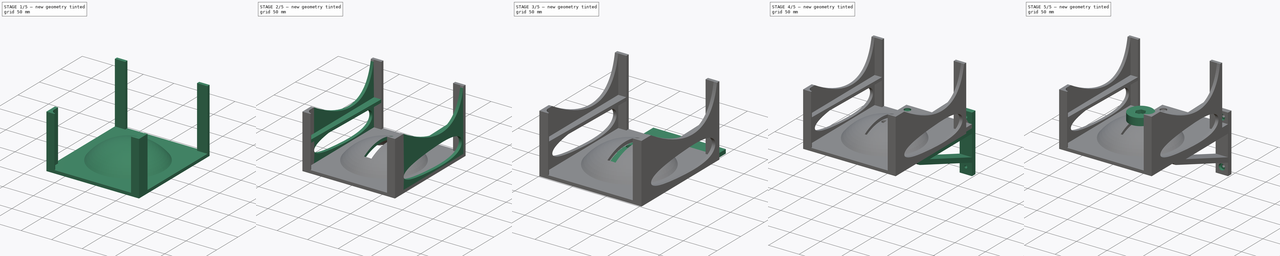
[diagram: build sequence overview — one tinted view per stage of 5, left to right]
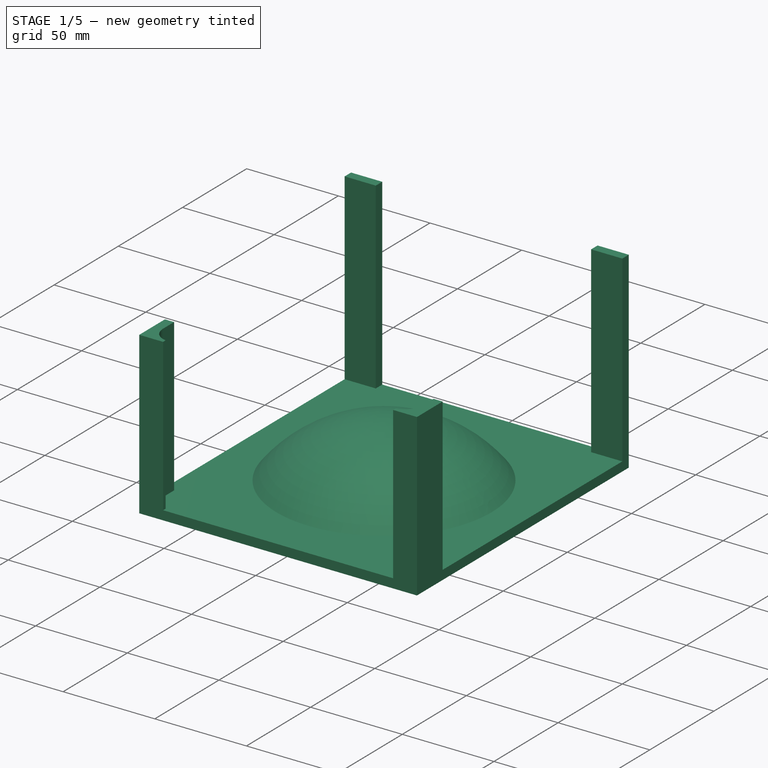
[diagram: stage 1 of 5 — iso view after this stage's code; geometry added in this stage tinted green]
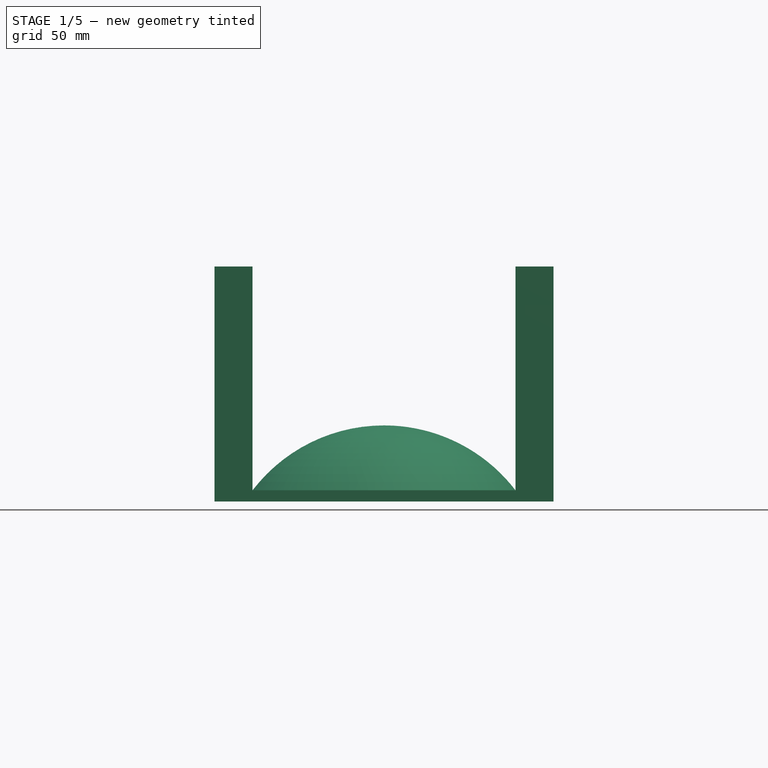
[diagram: stage 1 of 5 — front view after this stage's code; geometry added in this stage tinted green]
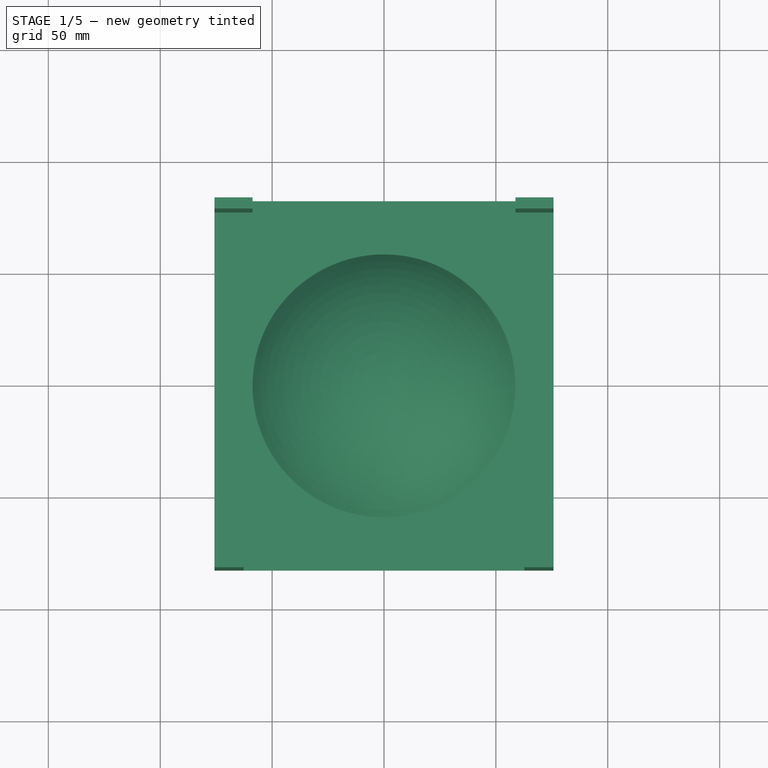
[diagram: stage 1 of 5 — top view after this stage's code; geometry added in this stage tinted green]
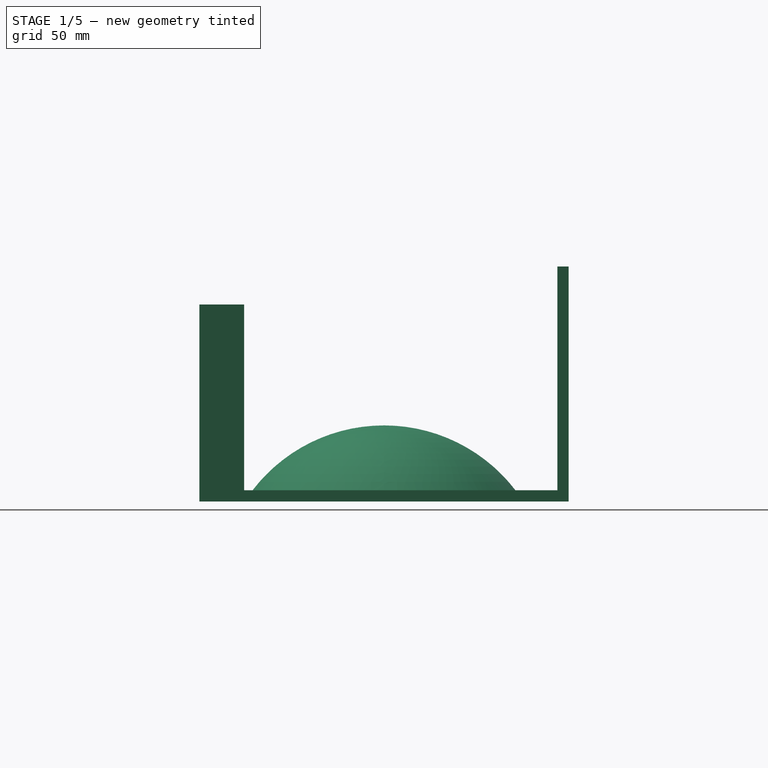
[diagram: stage 1 of 5 — right view after this stage's code; geometry added in this stage tinted green]
FCSTD DOCUMENT  (FreeCAD 0.19R24291 (Git))
Label: speakermount
License: All rights reserved
LicenseURL: http://en.wikipedia.org/wiki/All_rights_reserved
objects: Sketcher::SketchObject×26, PartDesign::Pocket×14, PartDesign::Pad×9, PartDesign::Mirrored×6, PartDesign::Body×4, PartDesign::Revolution×3, Spreadsheet::Sheet×1
note: 88 computed .brp shape members not serialized (recipe doc carries the construction recipe); baked Part::Feature solids carry a one-line shape summary decoded from their .brp

FEATURE [Spreadsheet::Sheet] Spreadsheet
  cells = A1=Speaker Width; B1(speakerWidth)=141.5; C1=142 on first test print; A2=Speaker Depth; B2(speakerDepth)=155; A3=Sphere Diameter; B3(sphereDiameter)==speakerWidth - 24; A4=Sphere Center Height; B4(sphereCenterHeight)=34; A5=Frame Bottom Thickness; B5(frameBottomThickness)=5; A6=Frame Wall Thickness; B6(frameWallThickness)=5; A7=Frame Wall Height Front; B7(frameWallHeightFront)=83; A8=Frame Wall Height Back; B8(frameWallHeightBack)=100; A9=Frame Wall Length Back; B9(frameWallLengthBack)=8; A10=Frame Wall Length Front; B10(frameWallLengthFront)=20; A11=Frame Front Wall Width; B11(frameFrontWallWidth)=8; A12=Frame Front Wall Thickness; B12(frameFrontWallThickness)=2; A13=Frame Wall Width Back; B13(frameWallWidthBack)=12; A14=Frame Slot Height; B14(frameSlotHeight)=76; A15=Frame Slot Width; B15(frameSlotWidth)=12; A16=Nut Thickness; B16(nutThickness)=6; C16=For fastener; A17=Nut Diameter; B17(nutDiameter)=13.5; C17=For fastener; A18=Fastener Thickness; B18(fastenerThickness)==nutThickness + washerThickness + 1.92; A19=Washer Diameter; B19(washerDiameter)=31; A20=Washer Thickness; B20(washerThickness)=1.6; A21=Fastener Hole Diameter; B21(fastenerHoleDiameter)==washerDiameter + 36; A22=Screw Hole Diameter; B22(screwHoleDiameter)=8.699999999999999; C22=Screw hole for fastener; A23=Shelf Cylinder Height; B23(shelfCylinderHeight)=15; A24=Shelf Cylinder Diameter; B24(shelfCylinderDiameter)==sphereDiameter - 10; A25=Shelf Depth; B25(shelfDepth)==speakerDepth / 2 + 50; C25=From center of speaker; A26=Shelf Thickness; B26(shelfThickness)=6; A27=Bracket Thickness; B27(bracketThickness)=8; A28=Bracket Screw Hole Diameter; B28(bracketScrewHoleDiameter)=4.5; A29=Bracket Screw Head Diameter; B29(bracketScrewHeadDiameter)=9; A30=Bracket Screw Hole Distance 1; B30(bracketScrewHoleDistance1)=1; C30=From Origo; A31=Bracket Screw Hole Distance 2; B31(bracketScrewHoleDistance2)=75; C31=From Origo; A32=Bracket Shelf Screw Hole Diameter; B32(bracketShelfScrewHoleDiameter)=4.75; A33=Bracket Shelf Screw Head Diameter; B33(bracketShelfScrewHeadDiameter)=7.15; A34=Bracket Shelf Screw Head Thickness; B34(bracketShelfScrewHeadThickness)=2.75; A35=Bracket Shelf Nut Diameter; B35(bracketShelfNutDiameter)=7.7; C35=From flat top to flat bottom; A36=Bracket Shelf Nut Thickness; B36(bracketShelfNutThickness)=3.2; A37=Bracket Shelf Screw Hole Distance 1; B37(bracketShelfScrewHoleDistance1)=20; C37=From absolute back of bracket; A38=Bracket Shelf Screw Hole Distance 2; B38(bracketShelfScrewHoleDistance2)=60; A39=Bracket Width; B39(bracketWidth)==(shelfCylinderDiameter - fastenerHoleDiameter) / 2; A40=Small Washer Diameter; B40(smallWasherDiameter)=10.25; C40=Diameter of washer for small screws
FEATURE [Sketcher::SketchObject] Sketch  label="Sphere"
  FullyConstrained = true
  MapMode = 5
  Placement = pos=(0,0,0) rot=(1,0,0;1.5708rad)
  Support = -> [XZ_Plane]
  expr: Constraints[2] = Spreadsheet.sphereDiameter / 2
  expr: Constraints[3] = Spreadsheet.sphereCenterHeight
  expr: Constraints[8] = Spreadsheet.frameBottomThickness
  sketch-geometry (4):
    g0: ArcOfCircle CenterX=0 CenterY=-40.0097 CenterZ=0 NormalX=0 NormalY=0 NormalZ=1 AngleXU=0 Radius=74.0097 StartAngle=0.65374 EndAngle=1.5708
    g1: ArcOfCircle CenterX=0 CenterY=-45.0097 CenterZ=0 NormalX=0 NormalY=0 NormalZ=1 AngleXU=0 Radius=74.0097 StartAngle=0.65374 EndAngle=1.5708
    g2: LineSegment StartX=4.5e-15 StartY=34 StartZ=0 EndX=4.5e-15 EndY=29 EndZ=0
    g3: LineSegment StartX=58.75 StartY=5 StartZ=0 EndX=58.75 EndY=0 EndZ=0
  constraints (14):
    c: PointOnObject(g0,g-2)
    c: PointOnObject(g0,g-2)
    c: DistanceX(g-1,g0) = 58.75
    c: DistanceY(g-1,g0) = 34
    c: PointOnObject(g1,g-2)
    c: PointOnObject(g1,g-1)
    c: Vertical(g1,g0)
    c: PointOnObject(g1,g-2)
    c: DistanceY(g1,g0) = 5
    c: Coincident(g2,g0)
    c: Coincident(g2,g1)
    c: Coincident(g3,g0)
    c: Coincident(g3,g1)
    c: Equal(g3,g2)
FEATURE [PartDesign::Revolution] Revolution
  Angle = 360
  Axis = (0,-2e-16,1)
  Base = (0,0,0)
  Placement = pos=(0,0,0) rot=(1,0,0;1.5708rad)
  Profile = -> Sketch
  ReferenceAxis = -> Sketch [V_Axis]
  Reversed = true
FEATURE [Sketcher::SketchObject] Sketch001  label="Bottom"
  FullyConstrained = true
  MapMode = 5
  Support = -> [XY_Plane]
  expr: Constraints[6] = Spreadsheet.speakerWidth + Spreadsheet.frameWallThickness * 2
  expr: Constraints[7] = Spreadsheet.speakerDepth + Spreadsheet.frameWallThickness * 2
  expr: Constraints[11] = Spreadsheet.sphereDiameter
  sketch-geometry (5):
    g0: LineSegment StartX=-75.75 StartY=82.5 StartZ=0 EndX=75.75 EndY=82.5 EndZ=0
    g1: LineSegment StartX=75.75 StartY=82.5 StartZ=0 EndX=75.75 EndY=-82.5 EndZ=0
    g2: LineSegment StartX=75.75 StartY=-82.5 StartZ=0 EndX=-75.75 EndY=-82.5 EndZ=0
    g3: LineSegment StartX=-75.75 StartY=-82.5 StartZ=0 EndX=-75.75 EndY=82.5 EndZ=0
    g4: Circle CenterX=0 CenterY=0 CenterZ=0 NormalX=0 NormalY=0 NormalZ=1 AngleXU=0 Radius=58.75
  constraints (12):
    c: Coincident(g0,g1)
    c: Coincident(g1,g2)
    c: Coincident(g2,g3)
    c: Coincident(g3,g0)
    c: Horizontal(g2)
    c: Vertical(g3)
    c: DistanceX(g0,g0) = 151.5
    c: DistanceY(g1,g0) = 165
    c: Symmetric(g0,g0,g-2)
    c: Symmetric(g0,g1,g-1)
    c: Coincident(g4,g-1)
    c: Diameter(g4) = 117.5
FEATURE [PartDesign::Pad] Pad
  BaseFeature = -> Revolution
  Direction = (1,1,1)
  Length = 5
  Length2 = 100
  Placement = pos=(0,0,0) rot=(1,0,0;1.5708rad)
  Profile = -> Sketch001
  Type = 0
  expr: Length = Spreadsheet.frameBottomThickness
FEATURE [Sketcher::SketchObject] Sketch002  label="WallBack"
  AttachmentOffset = pos=(0,0,5) rot=(0,0,1;0rad)
  FullyConstrained = true
  MapMode = 5
  Placement = pos=(0,0,5) rot=(0,0,1;0rad)
  Support = -> [XY_Plane]
  expr: Constraints[9] = Spreadsheet.frameWallThickness
  expr: Constraints[6] = Spreadsheet.speakerWidth / 2 + Spreadsheet.frameWallThickness
  expr: Constraints[7] = Spreadsheet.speakerDepth / 2 + Spreadsheet.frameWallThickness
  expr: .AttachmentOffset.Base.z = Spreadsheet.frameBottomThickness
  expr: Constraints[11] = Spreadsheet.frameWallWidthBack + Spreadsheet.frameWallThickness
  sketch-geometry (4):
    g0: LineSegment StartX=-75.75 StartY=77.5 StartZ=0 EndX=-75.75 EndY=82.5 EndZ=0
    g1: LineSegment StartX=-75.75 StartY=82.5 StartZ=0 EndX=-58.75 EndY=82.5 EndZ=0
    g2: LineSegment StartX=-58.75 StartY=82.5 StartZ=0 EndX=-58.75 EndY=77.5 EndZ=0
    g3: LineSegment StartX=-58.75 StartY=77.5 StartZ=0 EndX=-75.75 EndY=77.5 EndZ=0
  constraints (12):
    c: Vertical(g0)
    c: Coincident(g0,g1)
    c: Horizontal(g1)
    c: Coincident(g1,g2)
    c: Coincident(g2,g3)
    c: Horizontal(g3)
    c: DistanceX(g0,g-1) = 75.75
    c: DistanceY(g-1,g0) = 82.5
    c: Vertical(g2)
    c: DistanceY(g2,g1) = 5
    c: Coincident(g3,g0)
    c: DistanceX(g0,g2) = 17
FEATURE [PartDesign::Pad] Pad001
  BaseFeature = -> Pad
  Direction = (1,1,1)
  Length = 100
  Length2 = 100
  Placement = pos=(0,0,0) rot=(1,0,0;1.5708rad)
  Profile = -> Sketch002
  Type = 0
  expr: Length = Spreadsheet.frameWallHeightBack
FEATURE [PartDesign::Mirrored] Mirrored
  BaseFeature = -> Pad001
  MirrorPlane = -> Sketch002 [V_Axis]
  Originals = -> [Pad001]
  Placement = pos=(0,0,0) rot=(1,0,0;1.5708rad)
FEATURE [Sketcher::SketchObject] Sketch003  label="WallFront"
  AttachmentOffset = pos=(0,0,5) rot=(0,0,1;0rad)
  FullyConstrained = true
  MapMode = 5
  Placement = pos=(0,0,5) rot=(0,0,1;0rad)
  Support = -> [XY_Plane]
  expr: .AttachmentOffset.Base.z = Spreadsheet.frameBottomThickness
  expr: Constraints[7] = Spreadsheet.speakerDepth / 2 + Spreadsheet.frameWallThickness
  expr: Constraints[6] = Spreadsheet.frameWallThickness
  expr: Constraints[15] = Spreadsheet.frameFrontWallWidth
  expr: Constraints[14] = Spreadsheet.frameWallLengthFront
  expr: Constraints[8] = Spreadsheet.speakerWidth / 2 + Spreadsheet.frameWallThickness
  expr: Constraints[16] = Spreadsheet.frameFrontWallThickness
  sketch-geometry (6):
    g0: LineSegment StartX=-75.75 StartY=-62.5 StartZ=0 EndX=-75.75 EndY=-82.5 EndZ=0
    g1: LineSegment StartX=-75.75 StartY=-82.5 StartZ=0 EndX=-62.75 EndY=-82.5 EndZ=0
    g2: LineSegment StartX=-75.75 StartY=-62.5 StartZ=0 EndX=-70.75 EndY=-62.5 EndZ=0
    g3: LineSegment StartX=-62.75 StartY=-82.5 StartZ=0 EndX=-62.75 EndY=-80.5 EndZ=0
    g4: LineSegment StartX=-70.75 StartY=-62.5 StartZ=0 EndX=-70.75 EndY=-71.0427 EndZ=0
    g5: ArcOfCircle CenterX=-61.16 CenterY=-71.0427 CenterZ=0 NormalX=0 NormalY=0 NormalZ=1 AngleXU=0 Radius=9.59 StartAngle=3.14159 EndAngle=4.54582
  constraints (19):
    c: Vertical(g0)
    c: Coincident(g0,g1)
    c: Horizontal(g1)
    c: Coincident(g0,g2)
    c: Horizontal(g2)
    c: Coincident(g1,g3)
    c: DistanceX(g0,g2) = 5
    c: DistanceY(g0,g-1) = 82.5
    c: DistanceX(g0,g-1) = 75.75
    c: Coincident(g4,g2)
    c: Vertical(g4)
    c: Coincident(g5,g4)
    c: Coincident(g5,g3)
    c: Horizontal(g5,g4)
    c: DistanceY(g0,g0) = 20
    c: DistanceX(g2,g3) = 8
    c: DistanceY(g1,g3) = 2
    c: DistanceX(g3,g5) = 1.59
    c: Vertical(g3,g3)
FEATURE [PartDesign::Pad] Pad002
  BaseFeature = -> Mirrored
  Direction = (1,1,1)
  Length = 83
  Length2 = 100
  Placement = pos=(0,0,0) rot=(1,0,0;1.5708rad)
  Profile = -> Sketch003
  Type = 0
  expr: Length = Spreadsheet.frameWallHeightFront
FEATURE [PartDesign::Mirrored] Mirrored001
  BaseFeature = -> Pad002
  MirrorPlane = -> Sketch003 [V_Axis]
  Originals = -> [Pad002]
  Placement = pos=(0,0,0) rot=(1,0,0;1.5708rad)
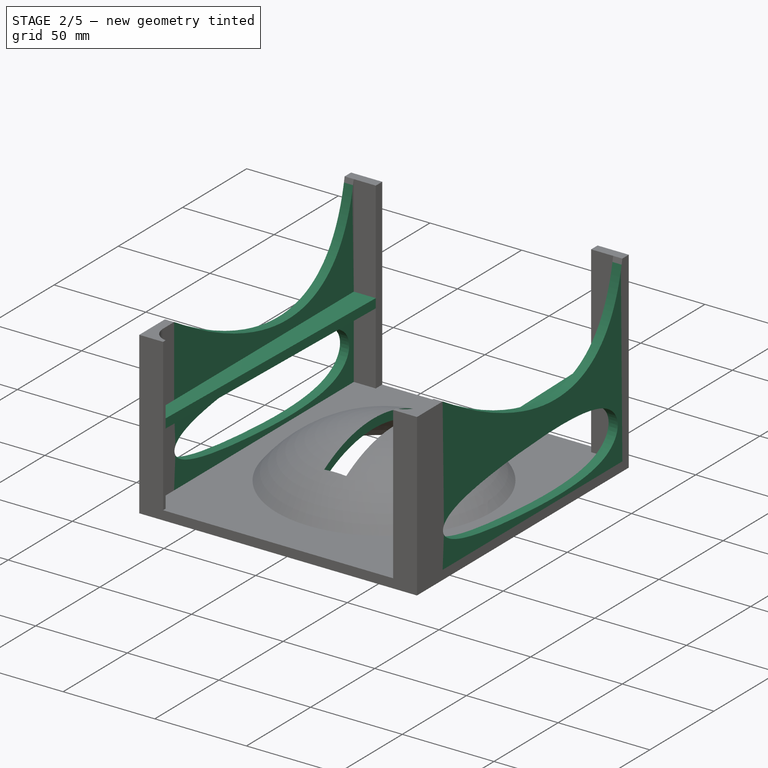
[diagram: stage 2 of 5 — iso view after this stage's code; geometry added in this stage tinted green]
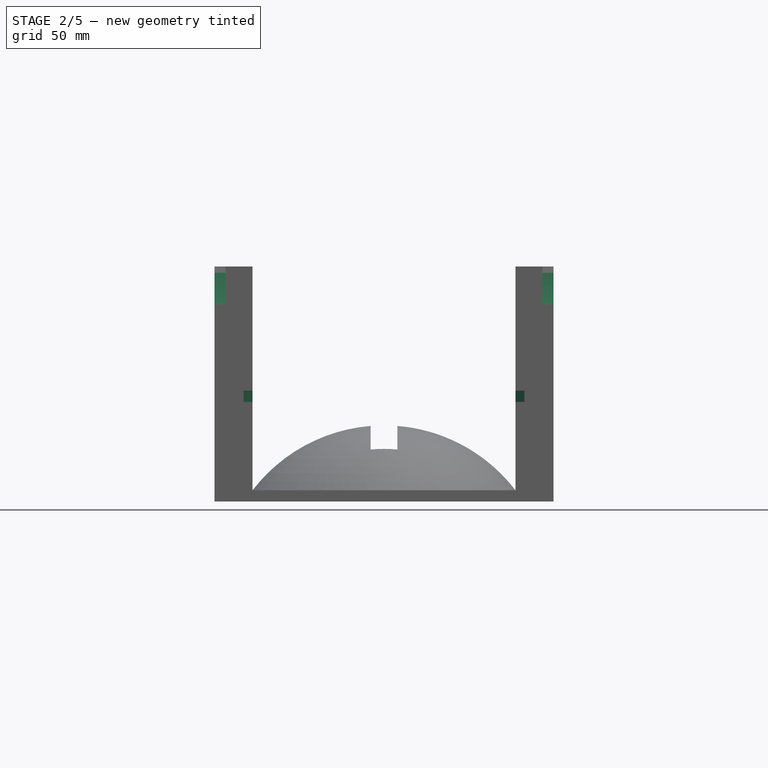
[diagram: stage 2 of 5 — front view after this stage's code; geometry added in this stage tinted green]
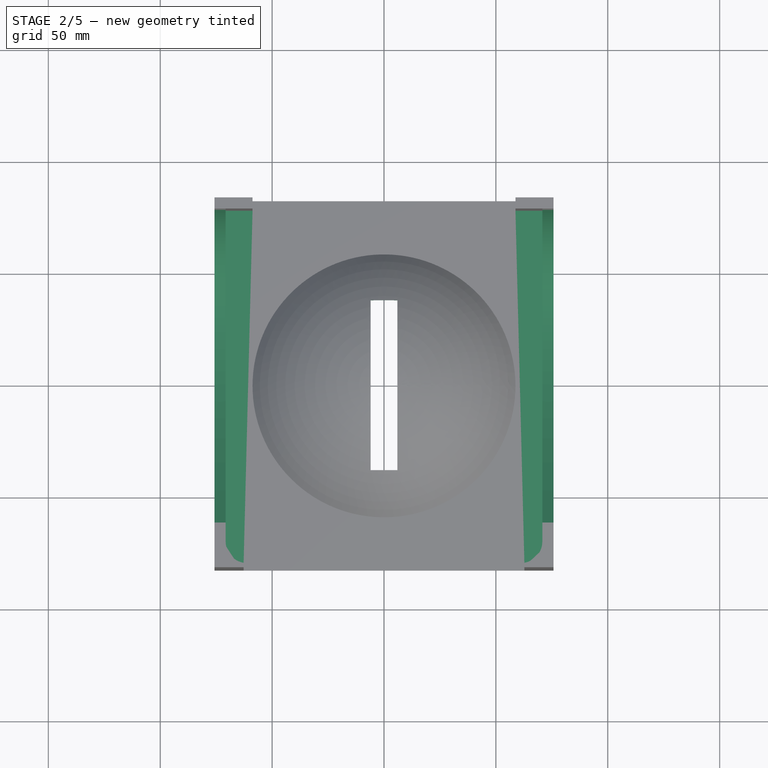
[diagram: stage 2 of 5 — top view after this stage's code; geometry added in this stage tinted green]
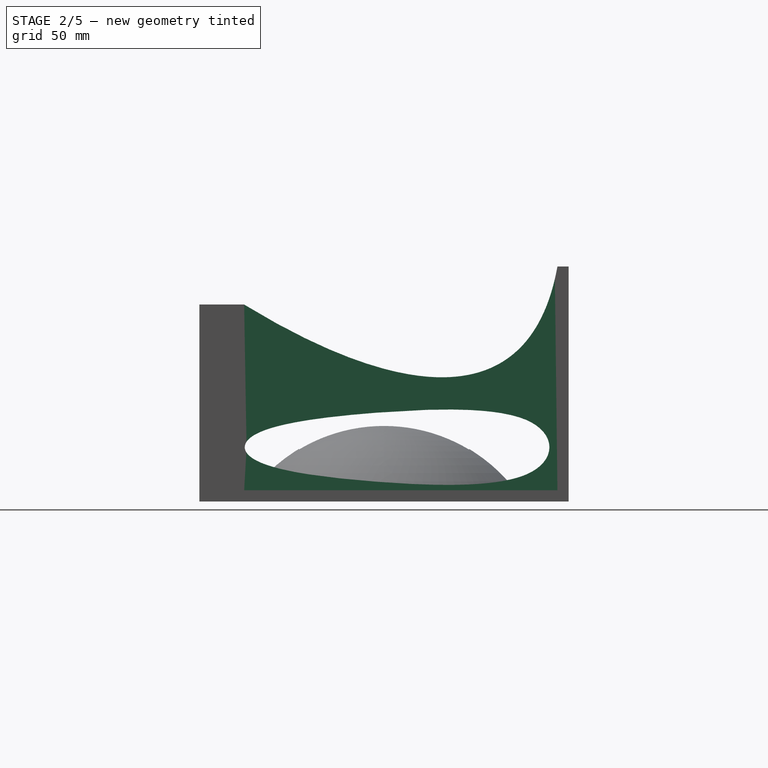
[diagram: stage 2 of 5 — right view after this stage's code; geometry added in this stage tinted green]
FEATURE [Sketcher::SketchObject] Sketch004  label="SideWalls"
  AttachmentOffset = pos=(0,0,75.75) rot=(0,0,1;0rad)
  FullyConstrained = false
  MapMode = 5
  Placement = pos=(75.75,-1.68e-14,1.68e-14) rot=(0.57735,0.57735,0.57735;2.0944rad)
  Support = -> [YZ_Plane]
  expr: .AttachmentOffset.Base.z = Spreadsheet.speakerWidth / 2 + Spreadsheet.frameWallThickness
  expr: Constraints[7] = Spreadsheet.speakerDepth / 2
  expr: Constraints[1] = Spreadsheet.frameBottomThickness
  expr: Constraints[2] = Spreadsheet.frameWallHeightFront
  expr: Constraints[3] = Spreadsheet.speakerDepth / 2 + Spreadsheet.frameWallThickness - Spreadsheet.frameWallLengthFront
  expr: Constraints[6] = Spreadsheet.frameWallHeightBack
  sketch-geometry (10):
    g0: LineSegment StartX=-62.5 StartY=5 StartZ=0 EndX=-62.5 EndY=88 EndZ=0
    g1: LineSegment StartX=77.5 StartY=5 StartZ=0 EndX=77.5 EndY=105 EndZ=0
    g2: LineSegment StartX=-62.5 StartY=5 StartZ=0 EndX=77.5 EndY=5 EndZ=0
    g3-g6: Circle x4 (B-spline internal-alignment scaffolding for g7; pole/knot coordinates omitted)
    g7: BSplineCurve PolesCount=4 KnotsCount=2 Degree=3 IsPeriodic=0
    g8: GeomPoint X=-62.5 Y=88 Z=0
    g9: GeomPoint X=77.5 Y=105 Z=0
  constraints (19):
    c: Vertical(g0)
    c: DistanceY(g-1,g0) = 5
    c: DistanceY(g0,g0) = 83
    c: DistanceX(g0,g-1) = 62.5
    c: Vertical(g1)
    c: Horizontal(g1,g0)
    c: DistanceY(g1,g1) = 100
    c: DistanceX(g-1,g1) = 77.5
    c: Coincident(g2,g0)
    c: Coincident(g2,g1)
    c: Coincident(g7,g0)
    c: Weight(g3) = 1
    c: Equal(g3,g4)
    c: Equal(g3,g5)
    c: Equal(g3,g6)
    c: Coincident(g7,g1)
    c: InternalAlignment(g3-g6 -> g7) x4
    c: InternalAlignment(g8,g7)
    c: InternalAlignment(g9,g7)
FEATURE [PartDesign::Pad] Pad003
  BaseFeature = -> Mirrored001
  Direction = (1,1,1)
  Length = 5
  Length2 = 100
  Placement = pos=(0,0,0) rot=(1,0,0;1.5708rad)
  Profile = -> Sketch004
  Reversed = true
  Type = 0
  expr: Length = Spreadsheet.frameWallThickness
FEATURE [PartDesign::Mirrored] Mirrored002
  BaseFeature = -> Pad003
  MirrorPlane = -> YZ_Plane
  Originals = -> [Pad003]
  Placement = pos=(0,0,0) rot=(1,0,0;1.5708rad)
FEATURE [Sketcher::SketchObject] Sketch005  label="SpeakerSill"
  AttachmentOffset = pos=(0,0,44.52) rot=(0,0,1;0rad)
  FullyConstrained = true
  MapMode = 5
  Placement = pos=(0,0,44.52) rot=(0,0,1;0rad)
  Support = -> [XY_Plane]
  expr: .AttachmentOffset.Base.z = Spreadsheet.sphereCenterHeight + Spreadsheet.fastenerThickness + 1
  expr: Constraints[7] = Spreadsheet.speakerDepth / 2
  expr: Constraints[8] = Spreadsheet.speakerWidth / 2
  expr: Constraints[9] = Spreadsheet.frameFrontWallWidth
  expr: Constraints[10] = Spreadsheet.speakerDepth / 2 + Spreadsheet.frameWallThickness - Spreadsheet.frameFrontWallThickness
  expr: Constraints[11] = Spreadsheet.frameWallWidthBack
  sketch-geometry (4):
    g0: LineSegment StartX=-70.75 StartY=77.5 StartZ=0 EndX=-58.75 EndY=77.5 EndZ=0
    g1: LineSegment StartX=-58.75 StartY=77.5 StartZ=0 EndX=-62.75 EndY=-80.5 EndZ=0
    g2: LineSegment StartX=-62.75 StartY=-80.5 StartZ=0 EndX=-70.75 EndY=-80.5 EndZ=0
    g3: LineSegment StartX=-70.75 StartY=-80.5 StartZ=0 EndX=-70.75 EndY=77.5 EndZ=0
  constraints (12):
    c: Coincident(g0,g1)
    c: Coincident(g1,g2)
    c: Coincident(g2,g3)
    c: Coincident(g3,g0)
    c: Horizontal(g0)
    c: Horizontal(g2)
    c: Vertical(g3)
    c: DistanceY(g-1,g0) = 77.5
    c: DistanceX(g0,g-1) = 70.75
    c: DistanceX(g2,g1) = 8
    c: DistanceY(g1,g-1) = 80.5
    c: DistanceX(g0,g0) = 12
FEATURE [PartDesign::Pad] Pad004
  BaseFeature = -> Mirrored002
  Direction = (1,1,1)
  Length = 5
  Length2 = 100
  Placement = pos=(0,0,0) rot=(1,0,0;1.5708rad)
  Profile = -> Sketch005
  Type = 0
FEATURE [PartDesign::Mirrored] Mirrored003
  BaseFeature = -> Pad004
  MirrorPlane = -> Sketch005 [V_Axis]
  Originals = -> [Pad004]
  Placement = pos=(0,0,0) rot=(1,0,0;1.5708rad)
FEATURE [Sketcher::SketchObject] Sketch006  label="Slot"
  AttachmentOffset = pos=(0,0,34) rot=(0,0,1;0rad)
  FullyConstrained = true
  MapMode = 5
  Placement = pos=(0,0,34) rot=(0,0,1;0rad)
  Support = -> [XY_Plane]
  expr: .AttachmentOffset.Base.z = Spreadsheet.sphereCenterHeight
  expr: Constraints[1] = Spreadsheet.frameSlotHeight
  expr: Constraints[5] = Spreadsheet.frameSlotWidth
  sketch-geometry (4):
    g0: LineSegment StartX=-6 StartY=38 StartZ=0 EndX=-6 EndY=-38 EndZ=0
    g1: LineSegment StartX=6 StartY=38 StartZ=0 EndX=6 EndY=-38 EndZ=0
    g2: LineSegment StartX=-6 StartY=38 StartZ=0 EndX=6 EndY=38 EndZ=0
    g3: LineSegment StartX=-6 StartY=-38 StartZ=0 EndX=6 EndY=-38 EndZ=0
  constraints (10):
    c: Symmetric(g0,g0,g-1)
    c: DistanceY(g0,g0) = 76
    c: Vertical(g1)
    c: Horizontal(g1,g0)
    c: Symmetric(g0,g1,g-2)
    c: DistanceX(g0,g1) = 12
    c: Coincident(g2,g0)
    c: Coincident(g2,g1)
    c: Coincident(g3,g0)
    c: Coincident(g3,g1)
FEATURE [PartDesign::Pocket] Pocket
  BaseFeature = -> Mirrored003
  Length = 34
  Length2 = 100
  Placement = pos=(0,0,0) rot=(1,0,0;1.5708rad)
  Profile = -> Sketch006
  Type = 0
  expr: Length = Spreadsheet.sphereCenterHeight
FEATURE [PartDesign::Body] Body002  label="Shelf"
  Group = -> [Sketch012,Revolution002,Sketch013,Pad006,Sketch014,Pad007,Sketch015,Pocket004,Sketch016,Pocket005,Sketch017,Pocket006,Sketch021,Pocket009,Sketch022,Pocket010,Mirrored004]
  Origin = -> Origin002
  Tip = -> Mirrored004
FEATURE [Sketcher::SketchObject] Sketch025  label="SideHoles"
  AttachmentOffset = pos=(0,0,70.75) rot=(0,0,1;0rad)
  FullyConstrained = false
  MapMode = 5
  Placement = pos=(70.75,-1.57e-14,1.57e-14) rot=(0.57735,0.57735,0.57735;2.0944rad)
  Support = -> [YZ_Plane]
  expr: Constraints[29] = Spreadsheet.speakerDepth / 2 * 5 / 6
  expr: Constraints[28] = Spreadsheet.speakerDepth / 2
  expr: Constraints[23] = Spreadsheet.frameBottomThickness
  expr: Constraints[22] = Spreadsheet.sphereCenterHeight + Spreadsheet.fastenerThickness
  expr: .AttachmentOffset.Base.z = Spreadsheet.speakerWidth / 2
  sketch-geometry (14):
    g0-g5: Circle x6 (B-spline internal-alignment scaffolding for g6; pole/knot coordinates omitted)
    g6: BSplineCurve PolesCount=6 KnotsCount=7 Degree=3 IsPeriodic=1
    g7-g13: GeomPoint x7 (B-spline internal-alignment scaffolding for g6; pole/knot coordinates omitted)
  constraints (15):
    c: Weight(g0) = 1
    c: Equal(g0, g1-g5) x5
    c: InternalAlignment(g0-g5 -> g6) x6
    c: InternalAlignment(g7-g13 -> g6) x7
    c: Vertical(g2,g3)
    c: Vertical(g0,g5)
    c: Vertical(g1,g4)
    c: DistanceY(g-1,g2) = 43.52
    c: DistanceY(g-1,g3) = 5
    c: DistanceY(g3,g4) = 3
    c: DistanceY(g1,g2) = 3
    c: DistanceY(g3,g5) = 11
    c: DistanceY(g0,g2) = 11
    c: DistanceX(g-1,g3) = 77.5
    c: DistanceX(g5,g-1) = 64.5833
FEATURE [PartDesign::Pocket] Pocket013
  BaseFeature = -> Pocket
  Length = 5
  Length2 = 100
  Placement = pos=(0,0,0) rot=(1,0,0;1.5708rad)
  Profile = -> Sketch025
  Reversed = true
  Type = 0
  expr: Length = Spreadsheet.frameWallThickness
FEATURE [PartDesign::Mirrored] Mirrored005
  BaseFeature = -> Pocket013
  MirrorPlane = -> YZ_Plane
  Originals = -> [Pocket013]
  Placement = pos=(0,0,0) rot=(1,0,0;1.5708rad)
FEATURE [PartDesign::Body] Body  label="SpeakerFrame"
  Group = -> [Sketch,Revolution,Sketch001,Pad,Sketch002,Pad001,Mirrored,Sketch003,Pad002,Mirrored001,Sketch004,Pad003,Mirrored002,Sketch005,Pad004,Mirrored003,Sketch006,Pocket,Sketch025,Pocket013,Mirrored005]
  Origin = -> Origin
  Tip = -> Pocket
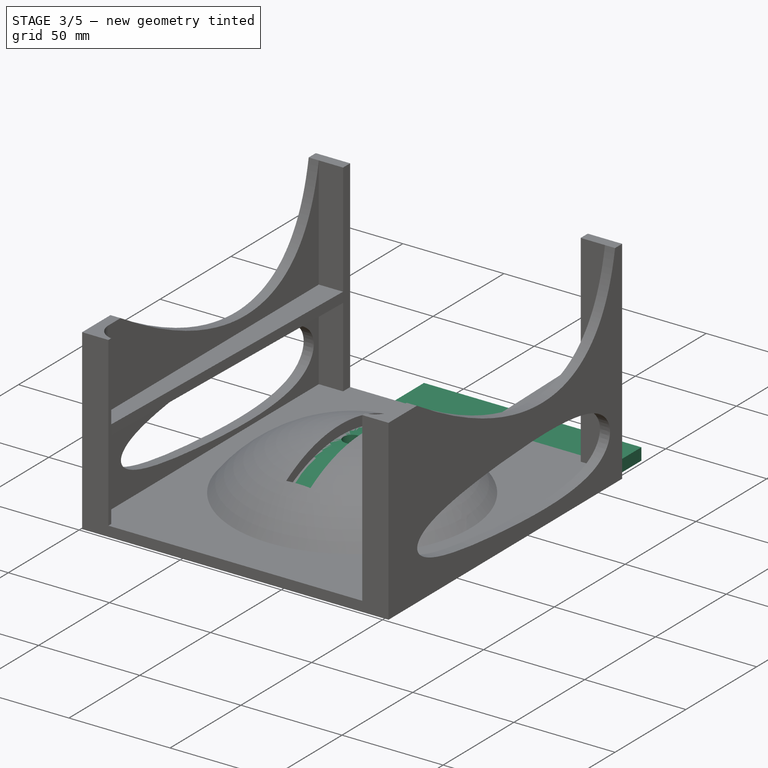
[diagram: stage 3 of 5 — iso view after this stage's code; geometry added in this stage tinted green]
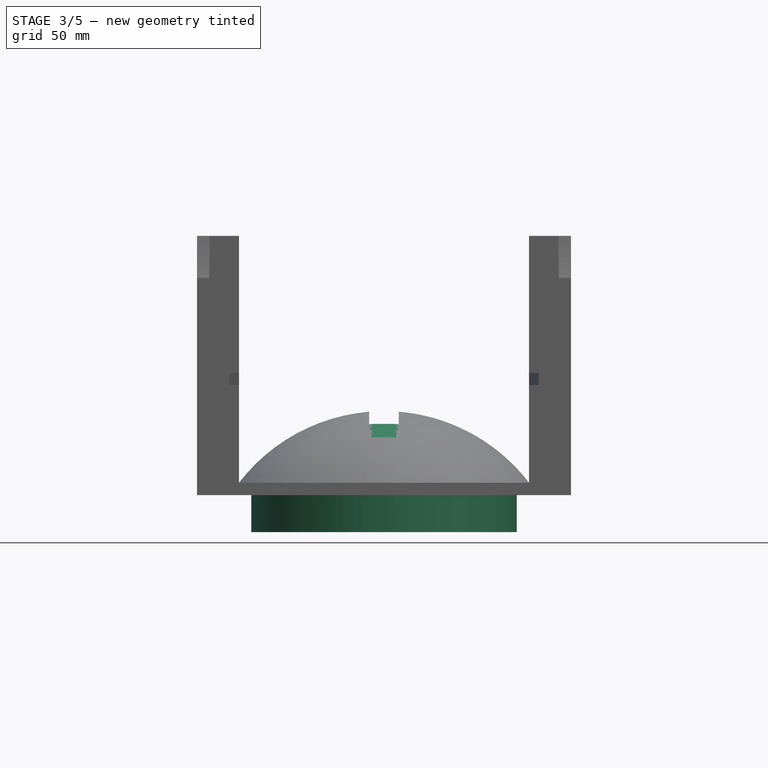
[diagram: stage 3 of 5 — front view after this stage's code; geometry added in this stage tinted green]
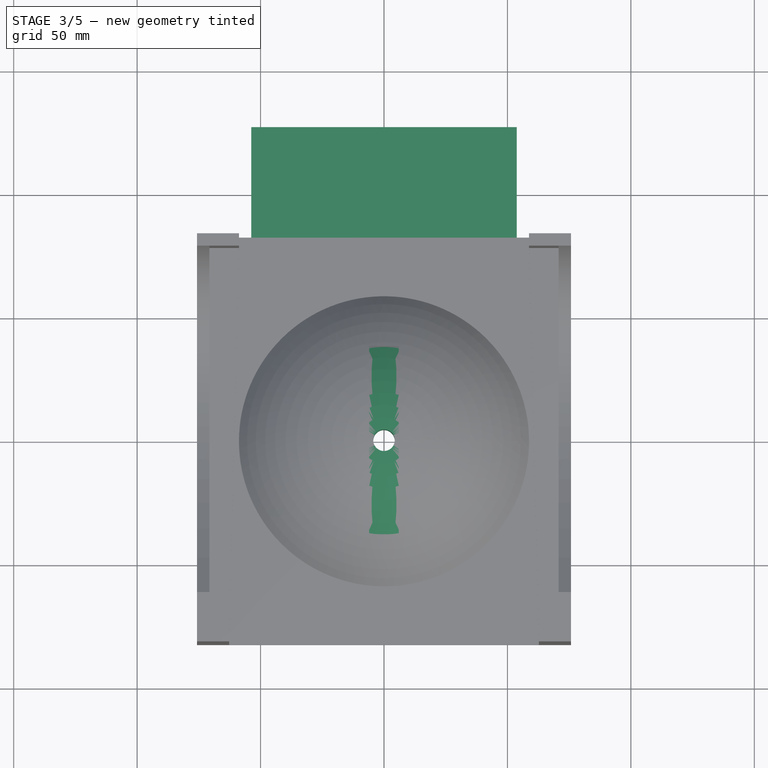
[diagram: stage 3 of 5 — top view after this stage's code; geometry added in this stage tinted green]
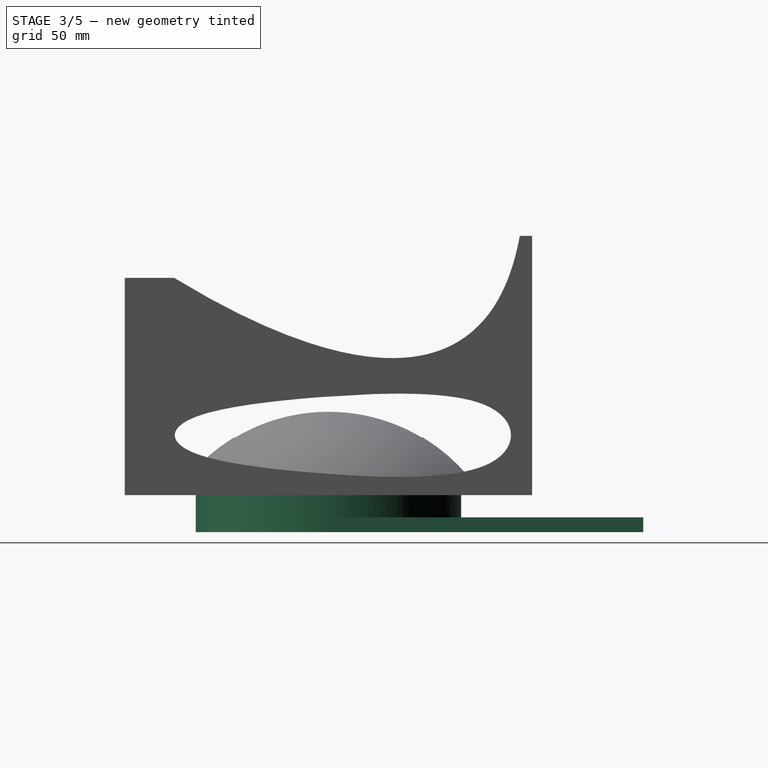
[diagram: stage 3 of 5 — right view after this stage's code; geometry added in this stage tinted green]
FEATURE [PartDesign::Body] Body001  label="Fastener"
  Group = -> [Sketch007,Revolution001,Sketch008,Pocket001,Sketch009,Pocket002,Sketch010,Sketch011,Pad005,Pocket003]
  Origin = -> Origin001
  Tip = -> Pocket003
FEATURE [Sketcher::SketchObject] Sketch012  label="Sphere001"
  FullyConstrained = true
  MapMode = 5
  Placement = pos=(0,0,0) rot=(1,0,0;1.5708rad)
  Support = -> [XZ_Plane002]
  expr: Constraints[8] = Spreadsheet.sphereDiameter / 2
  expr: Constraints[2] = Spreadsheet.sphereCenterHeight - Spreadsheet.frameBottomThickness
  sketch-geometry (3):
    g0: LineSegment StartX=4.5e-15 StartY=0 StartZ=0 EndX=4.5e-15 EndY=29 EndZ=0
    g1: ArcOfCircle CenterX=0 CenterY=-45.0097 CenterZ=0 NormalX=0 NormalY=0 NormalZ=1 AngleXU=0 Radius=74.0097 StartAngle=0.65374 EndAngle=1.5708
    g2: LineSegment StartX=4.5e-15 StartY=0 StartZ=0 EndX=58.75 EndY=0 EndZ=0
  constraints (9):
    c: Vertical(g0)
    c: Coincident(g0,g-1)
    c: DistanceY(g0,g0) = 29
    c: PointOnObject(g1,g-2)
    c: Coincident(g1,g0)
    c: PointOnObject(g1,g-1)
    c: Coincident(g2,g0)
    c: Coincident(g2,g1)
    c: DistanceX(g0,g1) = 58.75
FEATURE [PartDesign::Revolution] Revolution002
  Angle = 360
  Axis = (0,-2e-16,1)
  Base = (0,0,0)
  Placement = pos=(0,0,0) rot=(1,0,0;1.5708rad)
  Profile = -> Sketch012
  ReferenceAxis = -> Sketch012 [V_Axis]
  Reversed = true
FEATURE [Sketcher::SketchObject] Sketch013  label="Cylinder"
  FullyConstrained = true
  MapMode = 5
  Support = -> [XY_Plane002]
  expr: Constraints[1] = Spreadsheet.shelfCylinderDiameter
  sketch-geometry (1):
    g0: Circle CenterX=0 CenterY=0 CenterZ=0 NormalX=0 NormalY=0 NormalZ=1 AngleXU=0 Radius=53.75
  constraints (2):
    c: Coincident(g0,g-1)
    c: Diameter(g0) = 107.5
FEATURE [PartDesign::Pad] Pad006
  BaseFeature = -> Revolution002
  Direction = (1,1,1)
  Length = 15
  Length2 = 100
  Placement = pos=(0,0,0) rot=(1,0,0;1.5708rad)
  Profile = -> Sketch013
  Reversed = true
  Type = 0
  expr: Length = Spreadsheet.shelfCylinderHeight
FEATURE [Sketcher::SketchObject] Sketch014  label="BracketShelf"
  AttachmentOffset = pos=(0,0,-15) rot=(0,0,1;0rad)
  FullyConstrained = true
  MapMode = 5
  Placement = pos=(0,0,-15) rot=(0,0,1;0rad)
  Support = -> [XY_Plane002]
  expr: Constraints[11] = Spreadsheet.shelfDepth
  expr: .AttachmentOffset.Base.z = -Spreadsheet.shelfCylinderHeight
  expr: Constraints[3] = Spreadsheet.shelfCylinderDiameter
  sketch-geometry (4):
    g0: ArcOfCircle CenterX=0 CenterY=0 CenterZ=0 NormalX=0 NormalY=0 NormalZ=1 AngleXU=0 Radius=53.75 StartAngle=3.14159 EndAngle=6.28319
    g1: LineSegment StartX=-53.75 StartY=6.6e-15 StartZ=0 EndX=-53.75 EndY=127.5 EndZ=0
    g2: LineSegment StartX=53.75 StartY=-1.32e-14 StartZ=0 EndX=53.75 EndY=127.5 EndZ=0
    g3: LineSegment StartX=-53.75 StartY=127.5 StartZ=0 EndX=53.75 EndY=127.5 EndZ=0
  constraints (12):
    c: Coincident(g0,g-1)
    c: PointOnObject(g0,g-1)
    c: PointOnObject(g0,g-1)
    c: DistanceX(g0,g0) = 107.5
    c: Coincident(g1,g0)
    c: Vertical(g1)
    c: Coincident(g2,g0)
    c: Vertical(g2)
    c: Coincident(g3,g1)
    c: Coincident(g3,g2)
    c: Horizontal(g3)
    c: DistanceY(g0,g1) = 127.5
FEATURE [PartDesign::Pad] Pad007
  BaseFeature = -> Pad006
  Direction = (1,1,1)
  Length = 6
  Length2 = 100
  Placement = pos=(0,0,0) rot=(1,0,0;1.5708rad)
  Profile = -> Sketch014
  Type = 0
  expr: Length = Spreadsheet.shelfThickness
FEATURE [Sketcher::SketchObject] Sketch015  label="SideCuts"
  FullyConstrained = true
  MapMode = 5
  Support = -> [XY_Plane002]
  expr: Constraints[11] = Spreadsheet.speakerDepth
  expr: Constraints[10] = Spreadsheet.speakerWidth
  expr: Constraints[1] = Spreadsheet.shelfCylinderDiameter
  sketch-geometry (5):
    g0: Circle CenterX=0 CenterY=0 CenterZ=0 NormalX=0 NormalY=0 NormalZ=1 AngleXU=0 Radius=53.75
    g1: LineSegment StartX=-70.75 StartY=77.5 StartZ=0 EndX=70.75 EndY=77.5 EndZ=0
    g2: LineSegment StartX=70.75 StartY=77.5 StartZ=0 EndX=70.75 EndY=-77.5 EndZ=0
    g3: LineSegment StartX=70.75 StartY=-77.5 StartZ=0 EndX=-70.75 EndY=-77.5 EndZ=0
    g4: LineSegment StartX=-70.75 StartY=-77.5 StartZ=0 EndX=-70.75 EndY=77.5 EndZ=0
  constraints (12):
    c: Coincident(g0,g-1)
    c: Diameter(g0) = 107.5
    c: Coincident(g1,g2)
    c: Coincident(g2,g3)
    c: Coincident(g3,g4)
    c: Coincident(g4,g1)
    c: Horizontal(g3)
    c: Vertical(g4)
    c: Symmetric(g2,g1,g-1)
    c: Symmetric(g1,g1,g-2)
    c: DistanceX(g1,g1) = 141.5
    c: DistanceY(g3,g1) = 155
FEATURE [PartDesign::Pocket] Pocket004
  BaseFeature = -> Pad007
  Length = 34
  Length2 = 100
  Placement = pos=(0,0,0) rot=(1,0,0;1.5708rad)
  Profile = -> Sketch015
  Reversed = true
  Type = 0
  expr: Length = Spreadsheet.sphereCenterHeight
FEATURE [Sketcher::SketchObject] Sketch016  label="ScrewHole001"
  AttachmentOffset = pos=(0,0,-15) rot=(0,0,1;0rad)
  FullyConstrained = true
  MapMode = 5
  Placement = pos=(0,0,-15) rot=(0,0,1;0rad)
  Support = -> [XY_Plane002]
  expr: Constraints[1] = Spreadsheet.screwHoleDiameter
  expr: .AttachmentOffset.Base.z = -Spreadsheet.shelfCylinderHeight
  sketch-geometry (1):
    g0: Circle CenterX=0 CenterY=0 CenterZ=0 NormalX=0 NormalY=0 NormalZ=1 AngleXU=0 Radius=4.35
  constraints (2):
    c: Coincident(g0,g-1)
    c: Diameter(g0) = 8.7
FEATURE [PartDesign::Pocket] Pocket005
  BaseFeature = -> Pocket004
  Length = 49
  Length2 = 100
  Placement = pos=(0,0,0) rot=(1,0,0;1.5708rad)
  Profile = -> Sketch016
  Reversed = true
  Type = 0
  expr: Length = Spreadsheet.shelfCylinderHeight + Spreadsheet.sphereCenterHeight
FEATURE [Sketcher::SketchObject] Sketch017  label="FastenerHole"
  AttachmentOffset = pos=(0,0,-15) rot=(0,0,1;0rad)
  FullyConstrained = true
  MapMode = 5
  Placement = pos=(0,0,-15) rot=(0,0,1;0rad)
  Support = -> [XY_Plane002]
  expr: Constraints[1] = Spreadsheet.fastenerHoleDiameter
  expr: .AttachmentOffset.Base.z = -Spreadsheet.shelfCylinderHeight
  sketch-geometry (1):
    g0: Circle CenterX=0 CenterY=0 CenterZ=0 NormalX=0 NormalY=0 NormalZ=1 AngleXU=0 Radius=33.5
  constraints (2):
    c: Coincident(g0,g-1)
    c: Diameter(g0) = 67
FEATURE [PartDesign::Pocket] Pocket006
  BaseFeature = -> Pocket005
  Length = 27
  Length2 = 100
  Placement = pos=(0,0,0) rot=(1,0,0;1.5708rad)
  Profile = -> Sketch017
  Reversed = true
  Type = 0
  expr: Length = Spreadsheet.shelfCylinderHeight + Spreadsheet.sphereCenterHeight / 2 - 5
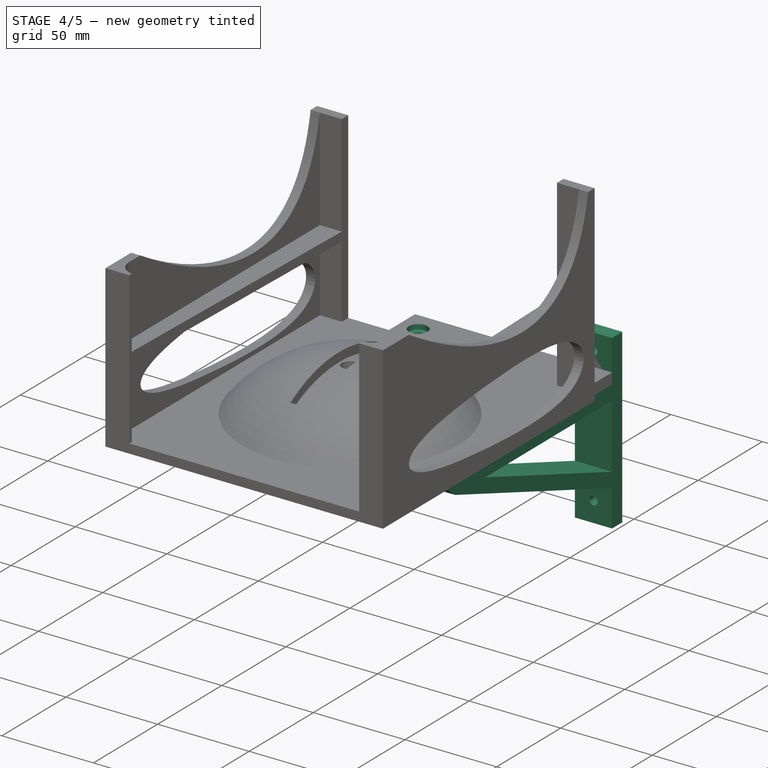
[diagram: stage 4 of 5 — iso view after this stage's code; geometry added in this stage tinted green]
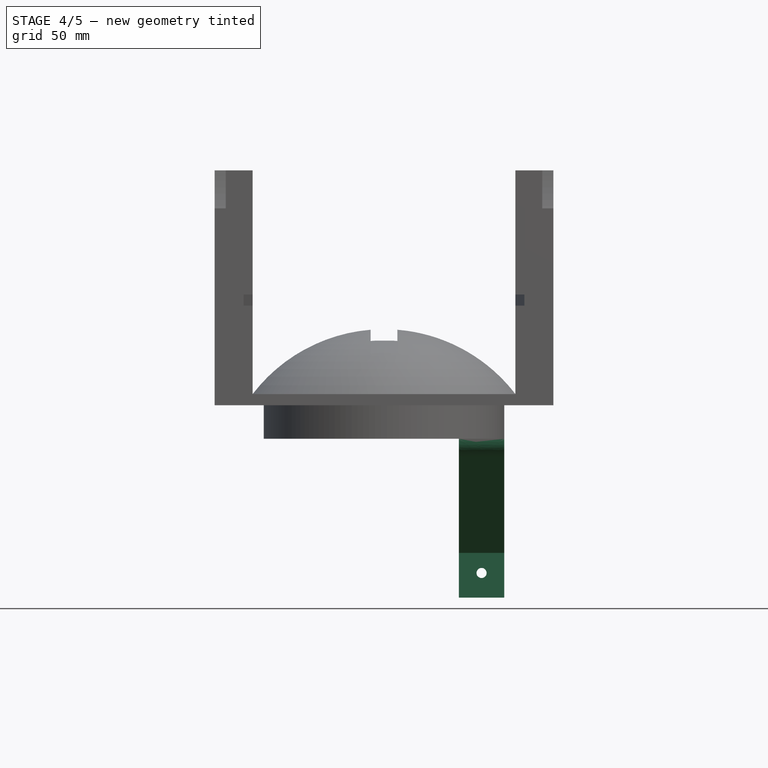
[diagram: stage 4 of 5 — front view after this stage's code; geometry added in this stage tinted green]
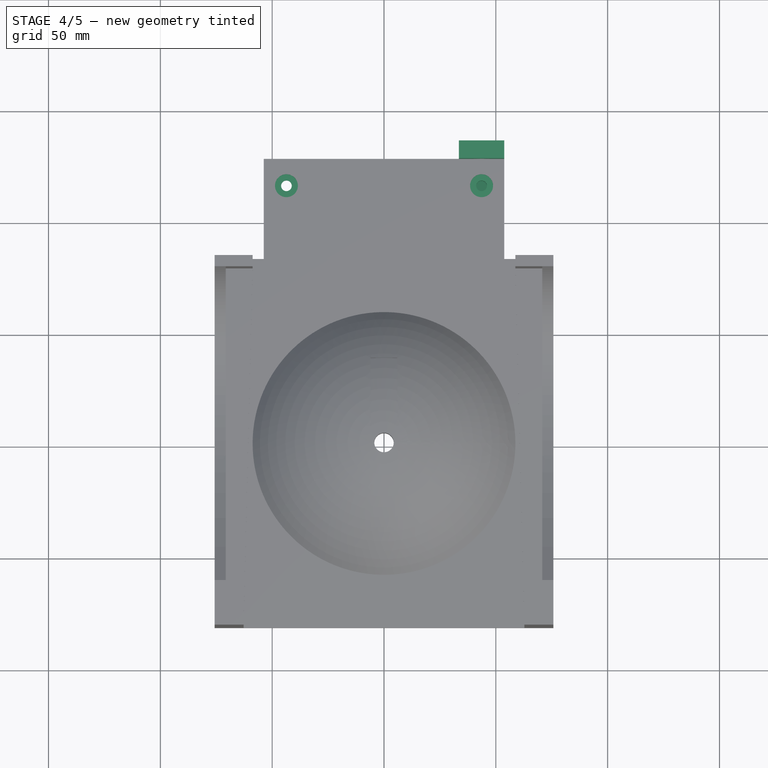
[diagram: stage 4 of 5 — top view after this stage's code; geometry added in this stage tinted green]
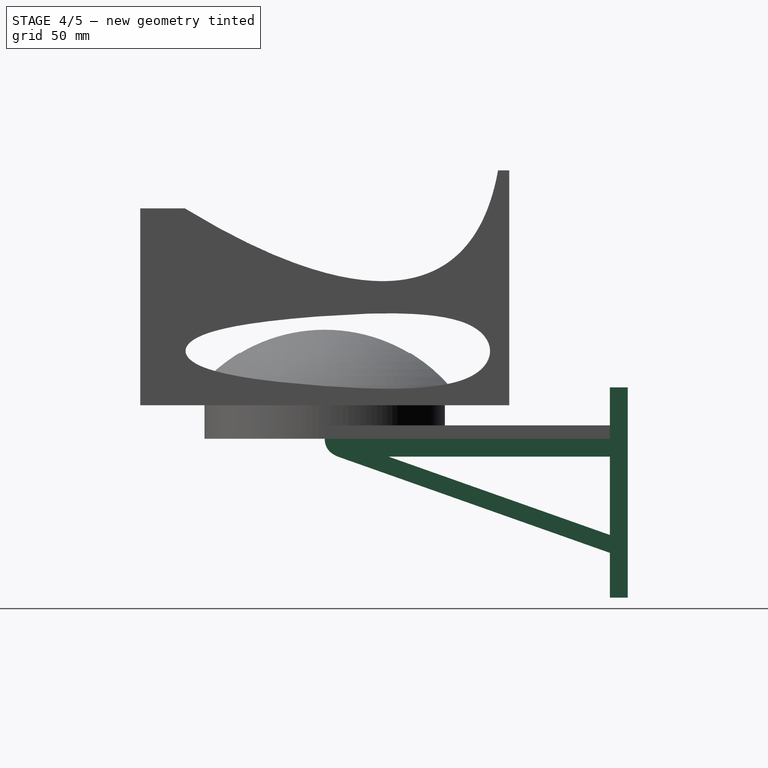
[diagram: stage 4 of 5 — right view after this stage's code; geometry added in this stage tinted green]
FEATURE [Sketcher::SketchObject] Sketch018  label="Frame"
  AttachmentOffset = pos=(127.5,0,53.75) rot=(0,0,1;0rad)
  FullyConstrained = false
  MapMode = 5
  Placement = pos=(53.75,127.5,-1.64e-14) rot=(0.57735,0.57735,0.57735;2.0944rad)
  Support = -> [YZ_Plane003]
  expr: .AttachmentOffset.Base.x = Spreadsheet.shelfDepth
  expr: Constraints[16] = Spreadsheet.shelfDepth
  expr: Constraints[21] = Spreadsheet.bracketThickness
  expr: Constraints[17] = Spreadsheet.bracketThickness
  expr: Constraints[6] = Spreadsheet.shelfCylinderHeight
  expr: .AttachmentOffset.Base.z = Spreadsheet.shelfCylinderDiameter / 2
  expr: Constraints[34] = Spreadsheet.bracketThickness
  sketch-geometry (18):
    g0: LineSegment StartX=0 StartY=8 StartZ=0 EndX=8 EndY=8 EndZ=0
    g1: LineSegment StartX=8 StartY=8 StartZ=0 EndX=8 EndY=-86 EndZ=0
    g2: LineSegment StartX=0 StartY=8 StartZ=0 EndX=0 EndY=-15 EndZ=0
    g3: LineSegment StartX=0 StartY=-66 StartZ=0 EndX=-121.534 EndY=-23 EndZ=0
    g4: LineSegment StartX=0 StartY=-58 StartZ=0 EndX=-98.9233 EndY=-23 EndZ=0
    g5: LineSegment StartX=-98.9233 StartY=-23 StartZ=0 EndX=0 EndY=-23 EndZ=0
    g6: LineSegment StartX=-127.5 StartY=-15 StartZ=0 EndX=0 EndY=-15 EndZ=0
    g7: LineSegment StartX=0 StartY=-23 StartZ=0 EndX=0 EndY=-58 EndZ=0
    g8: LineSegment StartX=-98.9233 StartY=-23 StartZ=0 EndX=-98.9233 EndY=-31 EndZ=0
    g9: LineSegment StartX=0 StartY=-66 StartZ=0 EndX=0 EndY=-86 EndZ=0
    g10: LineSegment StartX=0 StartY=-86 StartZ=0 EndX=8 EndY=-86 EndZ=0
    g11: LineSegment StartX=0 StartY=-58 StartZ=0 EndX=0 EndY=-66 EndZ=0
    g12: Circle CenterX=-121.534 CenterY=-23 CenterZ=0 NormalX=0 NormalY=0 NormalZ=1 AngleXU=0 Radius=1
    g13: Circle CenterX=-127.5 CenterY=-20.6784 CenterZ=0 NormalX=0 NormalY=0 NormalZ=1 AngleXU=0 Radius=1
    g14: Circle CenterX=-127.5 CenterY=-15 CenterZ=0 NormalX=0 NormalY=0 NormalZ=1 AngleXU=0 Radius=1
    g15: BSplineCurve PolesCount=3 KnotsCount=2 Degree=2 IsPeriodic=0
    g16: GeomPoint X=-121.534 Y=-23 Z=0
    g17: GeomPoint X=-127.5 Y=-15 Z=0
  constraints (46):
    c: Coincident(g0,g1)
    c: Horizontal(g0)
    c: Vertical(g1)
    c: PointOnObject(g0,g-2)
    c: Coincident(g2,g0)
    c: PointOnObject(g2,g-2)
    c: DistanceY(g2,g-1) = 15
    c: PointOnObject(g4,g-2)
    c: Coincident(g5,g4)
    c: PointOnObject(g5,g-2)
    c: Horizontal(g5)
    c: Horizontal(g3,g4)
    c: Coincident(g6,g2)
    c: Horizontal(g6)
    c: Coincident(g7,g5)
    c: Coincident(g7,g4)
    c: DistanceX(g6,g2) = 127.5
    c: DistanceY(g3,g4) = 8
    c: Coincident(g8,g4)
    c: PointOnObject(g8,g3)
    c: Vertical(g8)
    c: DistanceX(g0,g0) = 8
    c: DistanceY(g-1,g0) = 8
    c: Coincident(g3,g9)
    c: PointOnObject(g9,g-2)
    c: Vertical(g9)
    c: Coincident(g9,g10)
    c: Horizontal(g10)
    c: Coincident(g1,g10)
    c: DistanceY(g9,g3) = 20
    c: Coincident(g11,g4)
    c: Coincident(g11,g3)
    c: Equal(g11,g8)
    c: DistanceY(g4,g5) = 35
    c: DistanceY(g5,g2) = 8
    c: Coincident(g15,g3)
    c: Weight(g12) = 1
    c: Equal(g12,g13)
    c: Equal(g12,g14)
    c: Coincident(g15,g6)
    c: InternalAlignment(g12,g15)
    c: InternalAlignment(g13,g15)
    c: InternalAlignment(g14,g15)
    c: InternalAlignment(g16,g15)
    c: InternalAlignment(g17,g15)
    c: Vertical(g13,g6)
FEATURE [PartDesign::Pad] Pad008
  Direction = (1,1,1)
  Length = 20.25
  Length2 = 100
  Placement = pos=(0,0,0) rot=(0.57735,0.57735,0.57735;2.0944rad)
  Profile = -> Sketch018
  Reversed = true
  Type = 0
  expr: Length = Spreadsheet.bracketWidth
FEATURE [Sketcher::SketchObject] Sketch019  label="ScrewHoles"
  AttachmentOffset = pos=(43.625,0,-15) rot=(0,0,1;0rad)
  FullyConstrained = false
  MapMode = 5
  Placement = pos=(43.625,0,-15) rot=(0,0,1;0rad)
  Support = -> [XY_Plane003]
  expr: Constraints[8] = Spreadsheet.bracketShelfScrewHoleDistance2
  expr: Constraints[5] = Spreadsheet.bracketShelfScrewHoleDistance1
  expr: Constraints[4] = Spreadsheet.shelfDepth + Spreadsheet.bracketThickness
  expr: Constraints[1] = Spreadsheet.bracketShelfScrewHoleDiameter
  expr: Constraints[7] = Spreadsheet.bracketShelfScrewHoleDiameter
  expr: .AttachmentOffset.Base.z = -Spreadsheet.shelfCylinderHeight
  expr: .AttachmentOffset.Base.x = Spreadsheet.shelfCylinderDiameter / 2 - Spreadsheet.bracketWidth / 2
  sketch-geometry (3):
    g0: Circle CenterX=0 CenterY=115.5 CenterZ=0 NormalX=0 NormalY=0 NormalZ=1 AngleXU=0 Radius=2.375
    g1: LineSegment StartX=29.2361 StartY=1e-16 StartZ=0 EndX=29.2361 EndY=135.5 EndZ=0
    g2: Circle CenterX=0 CenterY=75.5 CenterZ=0 NormalX=0 NormalY=0 NormalZ=1 AngleXU=0 Radius=2.375
  constraints (9):
    c: PointOnObject(g0,g-2)
    c: Diameter(g0) = 4.75
    c: PointOnObject(g1,g-1)
    c: Vertical(g1)
    c: DistanceY(g1,g1) = 135.5
    c: DistanceY(g0,g1) = 20
    c: PointOnObject(g2,g-2)
    c: Diameter(g2) = 4.75
    c: DistanceY(g2,g1) = 60
FEATURE [PartDesign::Pocket] Pocket007
  BaseFeature = -> Pad008
  Length = 8
  Length2 = 100
  Placement = pos=(0,0,0) rot=(0.57735,0.57735,0.57735;2.0944rad)
  Profile = -> Sketch019
  Type = 0
  expr: Length = Spreadsheet.bracketThickness
FEATURE [Sketcher::SketchObject] Sketch020  label="NutHoles"
  AttachmentOffset = pos=(43.625,0,-23) rot=(0,0,1;0rad)
  FullyConstrained = false
  MapMode = 5
  Placement = pos=(43.625,0,-23) rot=(0,0,1;0rad)
  Support = -> [XY_Plane003]
  expr: Constraints[44] = Spreadsheet.bracketShelfNutDiameter
  expr: Constraints[42] = Spreadsheet.bracketShelfNutDiameter
  expr: .AttachmentOffset.Base.z = -Spreadsheet.shelfCylinderHeight - Spreadsheet.bracketThickness
  expr: Constraints[40] = Spreadsheet.bracketShelfScrewHoleDistance2
  expr: Constraints[21] = Spreadsheet.bracketShelfScrewHoleDistance1
  expr: Constraints[20] = Spreadsheet.shelfDepth + Spreadsheet.bracketThickness
  expr: .AttachmentOffset.Base.x = Spreadsheet.shelfCylinderDiameter / 2 - Spreadsheet.bracketWidth / 2
  sketch-geometry (15):
    g0: LineSegment StartX=3.85 StartY=113.277 StartZ=0 EndX=3.85 EndY=117.723 EndZ=0
    g1: LineSegment StartX=3.85 StartY=117.723 StartZ=0 EndX=-4e-16 EndY=119.946 EndZ=0
    g2: LineSegment StartX=-4e-16 StartY=119.946 StartZ=0 EndX=-3.85 EndY=117.723 EndZ=0
    g3: LineSegment StartX=-3.85 StartY=117.723 StartZ=0 EndX=-3.85 EndY=113.277 EndZ=0
    g4: LineSegment StartX=-3.85 StartY=113.277 StartZ=0 EndX=-4e-16 EndY=111.054 EndZ=0
    g5: LineSegment StartX=-4e-16 StartY=111.054 StartZ=0 EndX=3.85 EndY=113.277 EndZ=0
    g6: Circle CenterX=0 CenterY=115.5 CenterZ=0 NormalX=0 NormalY=0 NormalZ=1 AngleXU=0 Radius=4.4456
    g7: LineSegment StartX=38.5966 StartY=0 StartZ=0 EndX=38.5966 EndY=135.5 EndZ=0
    g8: LineSegment StartX=0 StartY=71.0544 StartZ=0 EndX=3.85 EndY=73.2772 EndZ=0
    g9: LineSegment StartX=3.85 StartY=73.2772 StartZ=0 EndX=3.85 EndY=77.7228 EndZ=0
    g10: LineSegment StartX=3.85 StartY=77.7228 StartZ=0 EndX=0 EndY=79.9456 EndZ=0
    g11: LineSegment StartX=0 StartY=79.9456 StartZ=0 EndX=-3.85 EndY=77.7228 EndZ=0
    g12: LineSegment StartX=-3.85 StartY=77.7228 StartZ=0 EndX=-3.85 EndY=73.2772 EndZ=0
    g13: LineSegment StartX=-3.85 StartY=73.2772 StartZ=0 EndX=0 EndY=71.0544 EndZ=0
    g14: Circle CenterX=0 CenterY=75.5 CenterZ=0 NormalX=0 NormalY=0 NormalZ=1 AngleXU=0 Radius=4.4456
  constraints (37):
    c: Coincident(g0,g1)
    c: Coincident(g1,g2)
    c: Coincident(g2,g3)
    c: Coincident(g3,g4)
    c: Coincident(g4,g5)
    c: Coincident(g5,g0)
    c: Equal(g0, g1-g5) x5
    c: PointOnObject(g0,g6)
    c: PointOnObject(g1,g6)
    c: PointOnObject(g2,g6)
    c: PointOnObject(g3,g6)
    c: PointOnObject(g4,g6)
    c: PointOnObject(g5,g6)
    c: PointOnObject(g6,g-2)
    c: PointOnObject(g7,g-1)
    c: Vertical(g7)
    c: DistanceY(g7,g7) = 135.5
    c: DistanceY(g6,g7) = 20
    c: Coincident(g8,g9)
    c: Coincident(g9,g10)
    c: Coincident(g10,g11)
    c: Coincident(g11,g12)
    c: Coincident(g12,g13)
    c: Coincident(g13,g8)
    c: Equal(g8, g9-g13) x5
    c: PointOnObject(g8,g14)
    c: PointOnObject(g9,g14)
    c: PointOnObject(g10,g14)
    c: PointOnObject(g11,g14)
    c: PointOnObject(g12,g14)
    c: PointOnObject(g13,g14)
    c: PointOnObject(g14,g-2)
    c: DistanceY(g14,g7) = 60
    c: Vertical(g9)
    c: DistanceX(g11,g9) = 7.7
    c: Vertical(g0)
    c: DistanceX(g3,g0) = 7.7
FEATURE [PartDesign::Pocket] Pocket008
  BaseFeature = -> Pocket007
  Length = 3.2
  Length2 = 100
  Placement = pos=(0,0,0) rot=(0.57735,0.57735,0.57735;2.0944rad)
  Profile = -> Sketch020
  Reversed = true
  Type = 0
  expr: Length = Spreadsheet.bracketShelfNutThickness
FEATURE [Sketcher::SketchObject] Sketch021  label="BracketScrewHoles"
  AttachmentOffset = pos=(43.625,0,-15) rot=(0,0,1;0rad)
  FullyConstrained = false
  MapMode = 5
  Placement = pos=(43.625,0,-15) rot=(0,0,1;0rad)
  Support = -> [XY_Plane002]
  expr: Constraints[8] = Spreadsheet.bracketShelfScrewHoleDistance2
  expr: .AttachmentOffset.Base.z = -Spreadsheet.shelfCylinderHeight
  expr: Constraints[7] = Spreadsheet.bracketShelfScrewHoleDiameter
  expr: Constraints[5] = Spreadsheet.bracketShelfScrewHoleDistance1
  expr: Constraints[4] = Spreadsheet.shelfDepth + Spreadsheet.bracketThickness
  expr: Constraints[1] = Spreadsheet.bracketShelfScrewHoleDiameter
  expr: .AttachmentOffset.Base.x = Spreadsheet.shelfCylinderDiameter / 2 - Spreadsheet.bracketWidth / 2
  sketch-geometry (3):
    g0: Circle CenterX=0 CenterY=115.5 CenterZ=0 NormalX=0 NormalY=0 NormalZ=1 AngleXU=0 Radius=2.375
    g1: LineSegment StartX=46.1584 StartY=0 StartZ=0 EndX=46.1584 EndY=135.5 EndZ=0
    g2: Circle CenterX=0 CenterY=75.5 CenterZ=0 NormalX=0 NormalY=0 NormalZ=1 AngleXU=0 Radius=2.375
  constraints (9):
    c: PointOnObject(g0,g-2)
    c: Diameter(g0) = 4.75
    c: PointOnObject(g1,g-1)
    c: Vertical(g1)
    c: DistanceY(g1,g1) = 135.5
    c: DistanceY(g0,g1) = 20
    c: PointOnObject(g2,g-2)
    c: Diameter(g2) = 4.75
    c: DistanceY(g2,g1) = 60
FEATURE [PartDesign::Pocket] Pocket009
  BaseFeature = -> Pocket006
  Length = 8
  Length2 = 100
  Placement = pos=(0,0,0) rot=(1,0,0;1.5708rad)
  Profile = -> Sketch021
  Reversed = true
  Type = 0
  expr: Length = Spreadsheet.bracketThickness
FEATURE [Sketcher::SketchObject] Sketch022  label="BracketScrewHeadHoles"
  AttachmentOffset = pos=(43.625,0,-9) rot=(0,0,1;0rad)
  FullyConstrained = false
  MapMode = 5
  Placement = pos=(43.625,0,-9) rot=(0,0,1;0rad)
  Support = -> [XY_Plane002]
  expr: Constraints[5] = Spreadsheet.smallWasherDiameter
  expr: Constraints[4] = Spreadsheet.bracketShelfScrewHoleDistance1
  expr: Constraints[3] = Spreadsheet.shelfDepth + Spreadsheet.bracketThickness
  expr: Constraints[7] = Spreadsheet.bracketShelfScrewHoleDistance2
  expr: .AttachmentOffset.Base.z = -Spreadsheet.shelfCylinderHeight + Spreadsheet.shelfThickness
  expr: .AttachmentOffset.Base.x = Spreadsheet.shelfCylinderDiameter / 2 - Spreadsheet.bracketWidth / 2
  sketch-geometry (3):
    g0: Circle CenterX=0 CenterY=115.5 CenterZ=0 NormalX=0 NormalY=0 NormalZ=1 AngleXU=0 Radius=5.125
    g1: LineSegment StartX=58.8824 StartY=0 StartZ=0 EndX=58.8824 EndY=135.5 EndZ=0
    g2: Circle CenterX=0 CenterY=75.5 CenterZ=0 NormalX=0 NormalY=0 NormalZ=1 AngleXU=0 Radius=5.125
  constraints (9):
    c: PointOnObject(g0,g-2)
    c: PointOnObject(g1,g-1)
    c: Vertical(g1)
    c: DistanceY(g1,g1) = 135.5
    c: DistanceY(g0,g1) = 20
    c: Diameter(g0) = 10.25
    c: PointOnObject(g2,g-2)
    c: DistanceY(g2,g1) = 60
    c: Equal(g2,g0)
FEATURE [PartDesign::Pocket] Pocket010
  BaseFeature = -> Pocket009
  Length = 2.75
  Length2 = 100
  Placement = pos=(0,0,0) rot=(1,0,0;1.5708rad)
  Profile = -> Sketch022
  Type = 0
  expr: Length = Spreadsheet.bracketShelfScrewHeadThickness
FEATURE [Sketcher::SketchObject] Sketch023  label="WallScrewHoles"
  AttachmentOffset = pos=(43.625,0,-127.5) rot=(0,0,1;0rad)
  FullyConstrained = true
  MapMode = 5
  Placement = pos=(43.625,127.5,2.83e-14) rot=(1,0,0;1.5708rad)
  Support = -> [XZ_Plane003]
  expr: Constraints[5] = Spreadsheet.bracketScrewHoleDistance2
  expr: Constraints[2] = Spreadsheet.bracketScrewHoleDistance1
  expr: .AttachmentOffset.Base.z = -Spreadsheet.shelfDepth
  expr: Constraints[4] = Spreadsheet.bracketScrewHoleDiameter
  expr: Constraints[1] = Spreadsheet.bracketScrewHoleDiameter
  expr: .AttachmentOffset.Base.x = Spreadsheet.shelfCylinderDiameter / 2 - Spreadsheet.bracketWidth / 2
  sketch-geometry (2):
    g0: Circle CenterX=0 CenterY=-1 CenterZ=0 NormalX=0 NormalY=0 NormalZ=1 AngleXU=0 Radius=2.25
    g1: Circle CenterX=0 CenterY=-75 CenterZ=0 NormalX=0 NormalY=0 NormalZ=1 AngleXU=0 Radius=2.25
  constraints (6):
    c: PointOnObject(g0,g-2)
    c: Diameter(g0) = 4.5
    c: DistanceY(g0,g-1) = 1
    c: PointOnObject(g1,g-2)
    c: Diameter(g1) = 4.5
    c: DistanceY(g1,g-1) = 75
FEATURE [PartDesign::Pocket] Pocket011
  BaseFeature = -> Pocket008
  Length = 8
  Length2 = 100
  Placement = pos=(0,0,0) rot=(0.57735,0.57735,0.57735;2.0944rad)
  Profile = -> Sketch023
  Type = 0
  expr: Length = Spreadsheet.bracketThickness
FEATURE [PartDesign::Body] Body003  label="Bracket"
  Group = -> [Sketch018,Pad008,Sketch019,Pocket007,Sketch020,Pocket008,Sketch023,Pocket011,Sketch024,Pocket012]
  Origin = -> Origin003
  Tip = -> Pocket012
FEATURE [PartDesign::Mirrored] Mirrored004
  BaseFeature = -> Pocket010
  MirrorPlane = -> YZ_Plane002
  Originals = -> [Pocket009,Pocket010]
  Placement = pos=(0,0,0) rot=(1,0,0;1.5708rad)
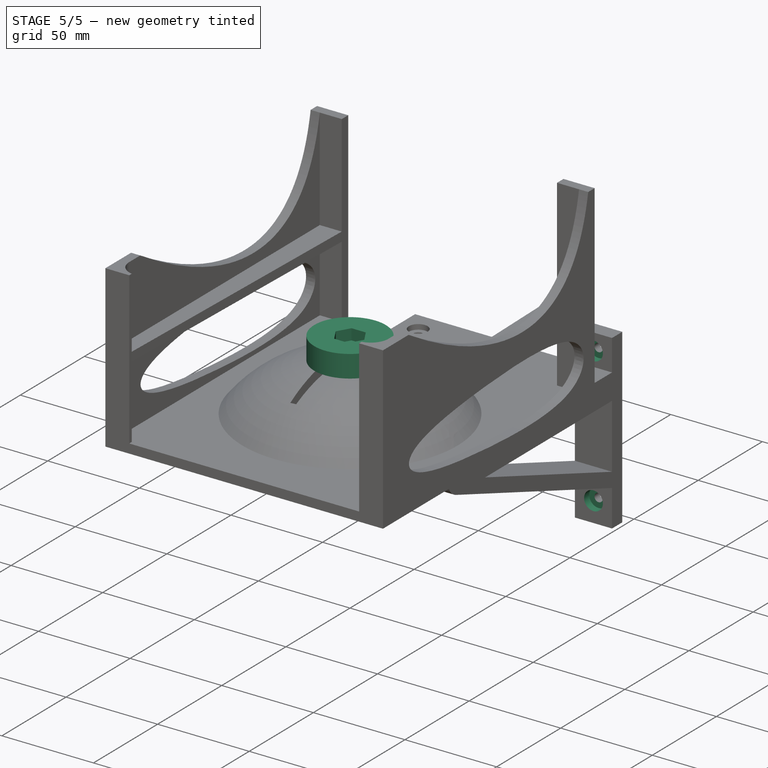
[diagram: stage 5 of 5 — iso view after this stage's code; geometry added in this stage tinted green]
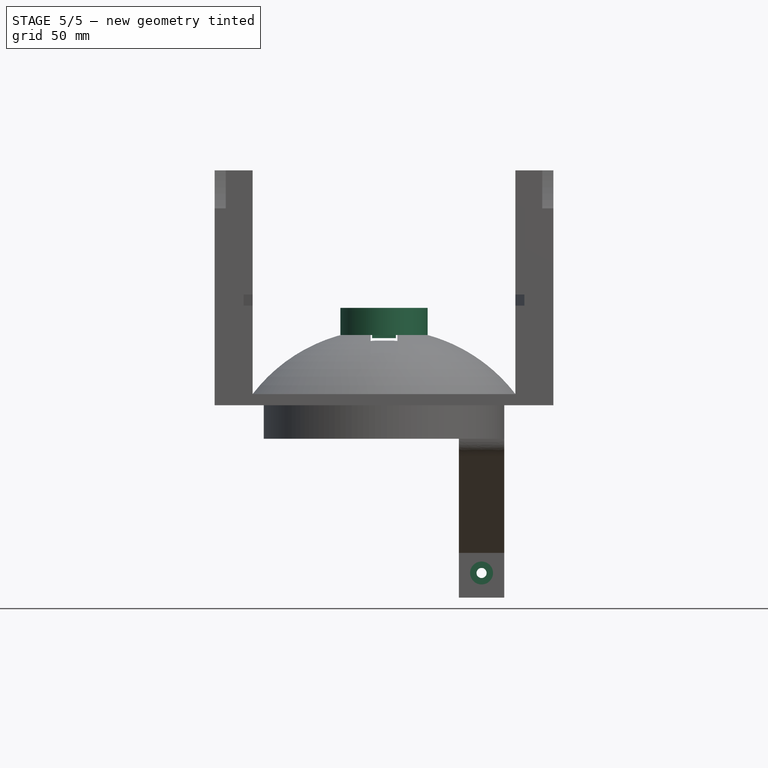
[diagram: stage 5 of 5 — front view after this stage's code; geometry added in this stage tinted green]
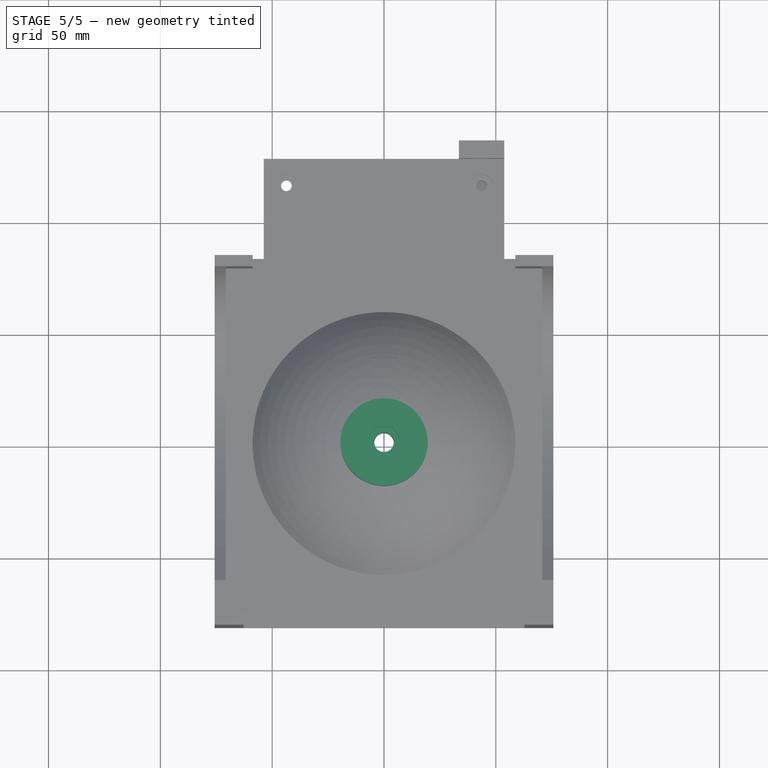
[diagram: stage 5 of 5 — top view after this stage's code; geometry added in this stage tinted green]
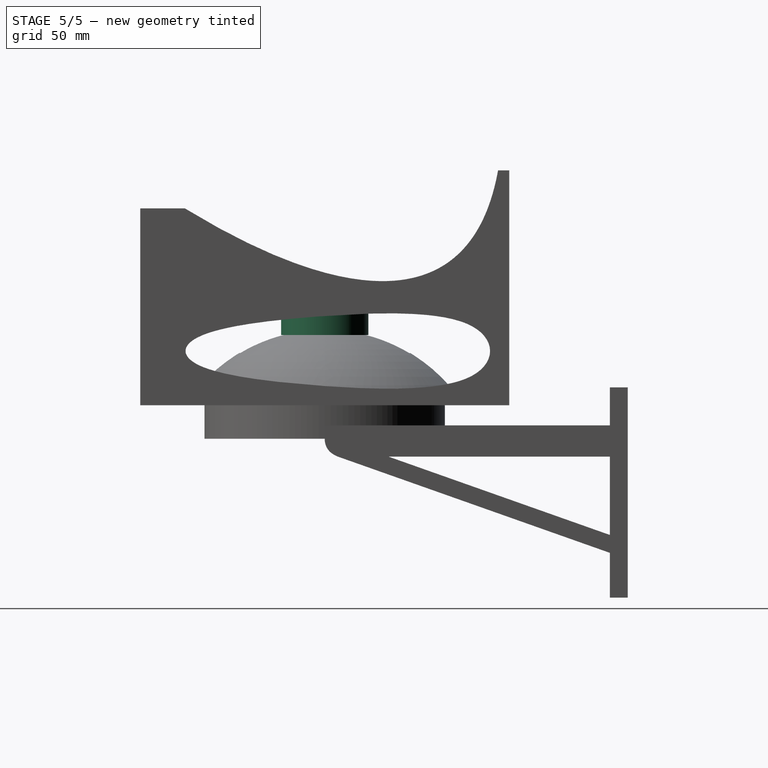
[diagram: stage 5 of 5 — right view after this stage's code; geometry added in this stage tinted green]
FEATURE [Sketcher::SketchObject] Sketch007  label="Main"
  FullyConstrained = true
  MapMode = 5
  Placement = pos=(0,0,0) rot=(1,0,0;1.5708rad)
  Support = -> [XZ_Plane001]
  expr: Constraints[16] = Spreadsheet.frameBottomThickness
  expr: Constraints[15] = Spreadsheet.fastenerThickness
  expr: Constraints[14] = Spreadsheet.washerDiameter / 2 + 4
  expr: Constraints[3] = Spreadsheet.sphereDiameter / 2
  expr: Constraints[2] = Spreadsheet.sphereCenterHeight
  sketch-geometry (5):
    g0: ArcOfCircle CenterX=0 CenterY=-40.0097 CenterZ=0 NormalX=0 NormalY=0 NormalZ=1 AngleXU=0 Radius=74.0097 StartAngle=0.65374 EndAngle=1.5708
    g1: ArcOfCircle CenterX=0 CenterY=-40.0097 CenterZ=0 NormalX=0 NormalY=0 NormalZ=1 AngleXU=0 Radius=74.0097 StartAngle=1.30417 EndAngle=1.5708
    g2: LineSegment StartX=4.5e-15 StartY=34 StartZ=0 EndX=0 EndY=43.52 EndZ=0
    g3: LineSegment StartX=19.5 StartY=31.3849 StartZ=0 EndX=19.5 EndY=43.52 EndZ=0
    g4: LineSegment StartX=0 StartY=43.52 StartZ=0 EndX=19.5 EndY=43.52 EndZ=0
  constraints (17):
    c: PointOnObject(g0,g-2)
    c: PointOnObject(g0,g-2)
    c: DistanceY(g-1,g0) = 34
    c: DistanceX(g-1,g0) = 58.75
    c: PointOnObject(g1,g-2)
    c: Coincident(g1,g0)
    c: PointOnObject(g1,g0)
    c: Coincident(g2,g1)
    c: PointOnObject(g2,g-2)
    c: Coincident(g3,g1)
    c: Vertical(g3)
    c: Coincident(g4,g2)
    c: Coincident(g4,g3)
    c: Horizontal(g4)
    c: DistanceX(g2,g3) = 19.5
    c: DistanceY(g1,g2) = 9.52
    c: DistanceY(g-1,g0) = 5
FEATURE [PartDesign::Revolution] Revolution001
  Angle = 360
  Axis = (0,-2e-16,1)
  Base = (0,0,0)
  Placement = pos=(0,0,0) rot=(1,0,0;1.5708rad)
  Profile = -> Sketch007
  ReferenceAxis = -> Sketch007 [V_Axis]
  Reversed = true
FEATURE [Sketcher::SketchObject] Sketch008  label="NutCutout"
  AttachmentOffset = pos=(0,0,43.52) rot=(0,0,1;0rad)
  FullyConstrained = true
  MapMode = 5
  Placement = pos=(0,0,43.52) rot=(0,0,1;0rad)
  Support = -> [XY_Plane001]
  expr: Constraints[19] = Spreadsheet.nutDiameter
  expr: .AttachmentOffset.Base.z = Spreadsheet.sphereCenterHeight + Spreadsheet.fastenerThickness
  sketch-geometry (7):
    g0: LineSegment StartX=3.89711 StartY=6.75 StartZ=0 EndX=-3.89711 EndY=6.75 EndZ=0
    g1: LineSegment StartX=-3.89711 StartY=6.75 StartZ=0 EndX=-7.79423 EndY=0 EndZ=0
    g2: LineSegment StartX=-7.79423 StartY=0 StartZ=0 EndX=-3.89711 EndY=-6.75 EndZ=0
    g3: LineSegment StartX=-3.89711 StartY=-6.75 StartZ=0 EndX=3.89711 EndY=-6.75 EndZ=0
    g4: LineSegment StartX=3.89711 StartY=-6.75 StartZ=0 EndX=7.79423 EndY=9e-16 EndZ=0
    g5: LineSegment StartX=7.79423 StartY=9e-16 StartZ=0 EndX=3.89711 EndY=6.75 EndZ=0
    g6: Circle CenterX=0 CenterY=0 CenterZ=0 NormalX=0 NormalY=0 NormalZ=1 AngleXU=0 Radius=7.79423
  constraints (16):
    c: Coincident(g0,g1)
    c: Coincident(g1,g2)
    c: Coincident(g2,g3)
    c: Coincident(g3,g4)
    c: Coincident(g4,g5)
    c: Coincident(g5,g0)
    c: Equal(g0, g1-g5) x5
    c: PointOnObject(g0,g6)
    c: PointOnObject(g1,g6)
    c: PointOnObject(g2,g6)
    c: PointOnObject(g3,g6)
    c: PointOnObject(g4,g6)
    c: PointOnObject(g5,g6)
    c: Coincident(g6,g-1)
    c: Horizontal(g0)
    c: DistanceY(g2,g0) = 13.5
FEATURE [PartDesign::Pocket] Pocket001
  BaseFeature = -> Revolution001
  Length = 6
  Length2 = 100
  Placement = pos=(0,0,0) rot=(1,0,0;1.5708rad)
  Profile = -> Sketch008
  Type = 0
  expr: Length = Spreadsheet.nutThickness
FEATURE [Sketcher::SketchObject] Sketch009  label="WasherCutout"
  AttachmentOffset = pos=(0,0,37.52) rot=(0,0,1;0rad)
  FullyConstrained = true
  MapMode = 5
  Placement = pos=(0,0,37.52) rot=(0,0,1;0rad)
  Support = -> [XY_Plane001]
  expr: Constraints[1] = Spreadsheet.washerDiameter
  expr: .AttachmentOffset.Base.z = Spreadsheet.sphereCenterHeight + Spreadsheet.fastenerThickness - Spreadsheet.nutThickness
  sketch-geometry (1):
    g0: Circle CenterX=0 CenterY=0 CenterZ=0 NormalX=0 NormalY=0 NormalZ=1 AngleXU=0 Radius=15.5
  constraints (2):
    c: Coincident(g0,g-1)
    c: Diameter(g0) = 31
FEATURE [PartDesign::Pocket] Pocket002
  BaseFeature = -> Pocket001
  Length = 1.6
  Length2 = 100
  Placement = pos=(0,0,0) rot=(1,0,0;1.5708rad)
  Profile = -> Sketch009
  Type = 0
  expr: Length = Spreadsheet.washerThickness
FEATURE [Sketcher::SketchObject] Sketch010  label="ScrewHole"
  AttachmentOffset = pos=(0,0,43.52) rot=(0,0,1;0rad)
  FullyConstrained = true
  MapMode = 5
  Placement = pos=(0,0,43.52) rot=(0,0,1;0rad)
  Support = -> [XY_Plane001]
  expr: Constraints[1] = Spreadsheet.screwHoleDiameter
  expr: .AttachmentOffset.Base.z = Spreadsheet.sphereCenterHeight + Spreadsheet.fastenerThickness
  sketch-geometry (1):
    g0: Circle CenterX=0 CenterY=0 CenterZ=0 NormalX=0 NormalY=0 NormalZ=1 AngleXU=0 Radius=4.35
  constraints (2):
    c: Coincident(g0,g-1)
    c: Diameter(g0) = 8.7
FEATURE [Sketcher::SketchObject] Sketch011  label="RotationStopper"
  AttachmentOffset = pos=(0,0,30) rot=(0,0,1;0rad)
  FullyConstrained = true
  MapMode = 5
  Placement = pos=(0,0,30) rot=(0,0,1;0rad)
  Support = -> [XY_Plane001]
  expr: Constraints[6] = Spreadsheet.frameSlotWidth - 1.4
  expr: .AttachmentOffset.Base.z = Spreadsheet.sphereCenterHeight - Spreadsheet.frameBottomThickness + 1
  sketch-geometry (4):
    g0: LineSegment StartX=-5.3 StartY=8 StartZ=0 EndX=5.3 EndY=8 EndZ=0
    g1: LineSegment StartX=5.3 StartY=8 StartZ=0 EndX=5.3 EndY=-8 EndZ=0
    g2: LineSegment StartX=5.3 StartY=-8 StartZ=0 EndX=-5.3 EndY=-8 EndZ=0
    g3: LineSegment StartX=-5.3 StartY=-8 StartZ=0 EndX=-5.3 EndY=8 EndZ=0
  constraints (10):
    c: Coincident(g0,g1)
    c: Coincident(g1,g2)
    c: Coincident(g2,g3)
    c: Coincident(g3,g0)
    c: Horizontal(g2)
    c: Vertical(g1)
    c: DistanceX(g0,g0) = 10.6
    c: Symmetric(g0,g2,g-1)
    c: Symmetric(g0,g0,g-2)
    c: DistanceY(g2,g0) = 16
FEATURE [PartDesign::Pad] Pad005
  BaseFeature = -> Pocket002
  Direction = (1,1,1)
  Length = 5
  Length2 = 100
  Placement = pos=(0,0,0) rot=(1,0,0;1.5708rad)
  Profile = -> Sketch011
  Type = 0
  expr: Length = Spreadsheet.frameBottomThickness
FEATURE [PartDesign::Pocket] Pocket003
  BaseFeature = -> Pad005
  Length = 14.52
  Length2 = 100
  Placement = pos=(0,0,0) rot=(1,0,0;1.5708rad)
  Profile = -> Sketch010
  Type = 0
  expr: Length = Spreadsheet.fastenerThickness + Spreadsheet.frameBottomThickness
FEATURE [Sketcher::SketchObject] Sketch024  label="WallScrewHeadHoles"
  AttachmentOffset = pos=(43.625,0,-127.5) rot=(0,0,1;0rad)
  FullyConstrained = true
  MapMode = 5
  Placement = pos=(43.625,127.5,2.83e-14) rot=(1,0,0;1.5708rad)
  Support = -> [XZ_Plane003]
  expr: Constraints[4] = Spreadsheet.smallWasherDiameter
  expr: Constraints[5] = Spreadsheet.bracketScrewHoleDistance2
  expr: Constraints[2] = Spreadsheet.smallWasherDiameter
  expr: Constraints[1] = Spreadsheet.bracketScrewHoleDistance1
  expr: .AttachmentOffset.Base.z = -Spreadsheet.shelfDepth
  expr: .AttachmentOffset.Base.x = Spreadsheet.shelfCylinderDiameter / 2 - Spreadsheet.bracketWidth / 2
  sketch-geometry (2):
    g0: Circle CenterX=0 CenterY=-1 CenterZ=0 NormalX=0 NormalY=0 NormalZ=1 AngleXU=0 Radius=5.125
    g1: Circle CenterX=0 CenterY=-75 CenterZ=0 NormalX=0 NormalY=0 NormalZ=1 AngleXU=0 Radius=5.125
  constraints (6):
    c: PointOnObject(g0,g-2)
    c: DistanceY(g0,g-1) = 1
    c: Diameter(g0) = 10.25
    c: PointOnObject(g1,g-2)
    c: Diameter(g1) = 10.25
    c: DistanceY(g1,g-1) = 75
FEATURE [PartDesign::Pocket] Pocket012
  BaseFeature = -> Pocket011
  Length = 4
  Length2 = 100
  Placement = pos=(0,0,0) rot=(0.57735,0.57735,0.57735;2.0944rad)
  Profile = -> Sketch024
  Type = 0
  expr: Length = Spreadsheet.bracketThickness - 4
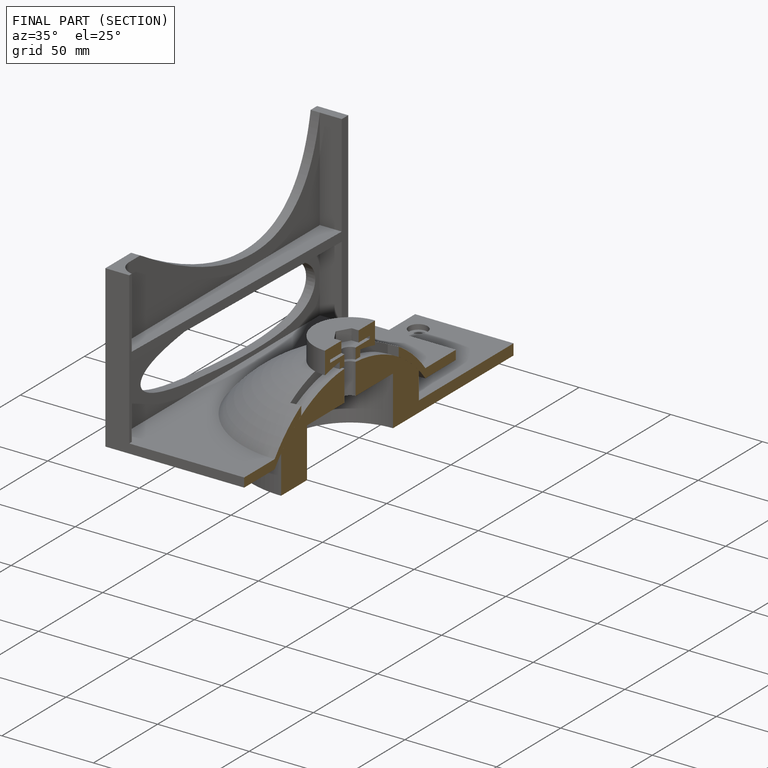
[diagram: finished part — half-section view (interior)]
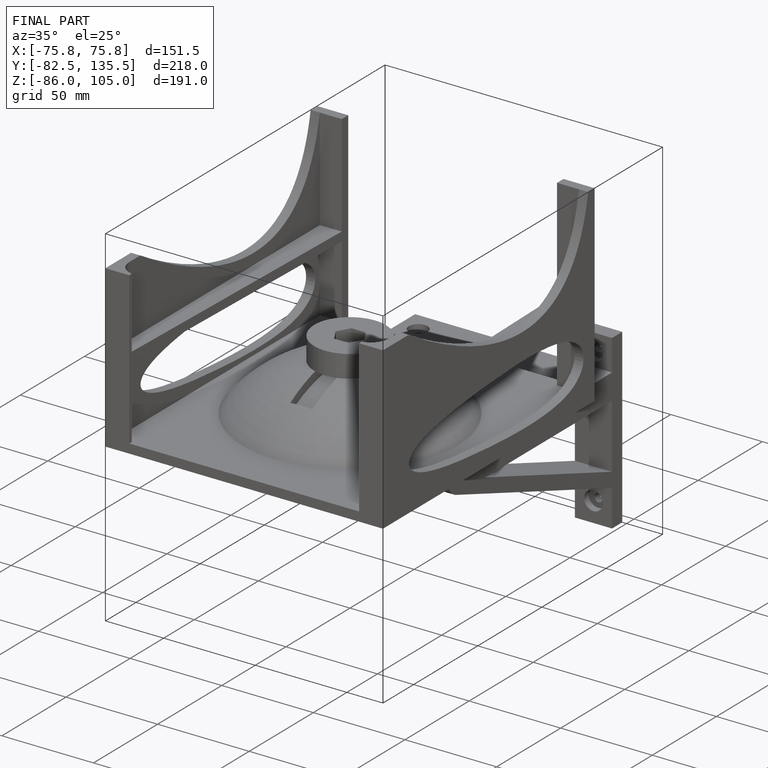
[diagram: finished part — iso view with bounding-box wireframe]
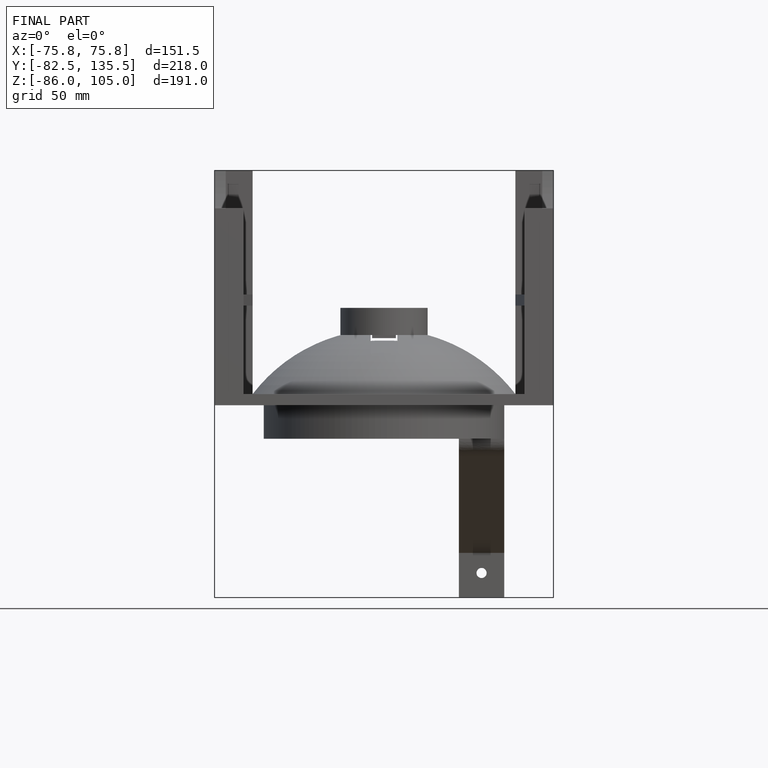
[diagram: finished part — front view with bounding-box wireframe]
